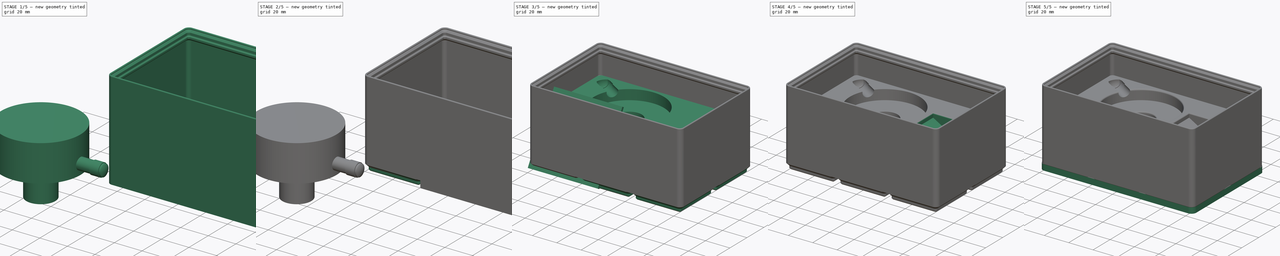
[diagram: build sequence overview — one tinted view per stage of 5, left to right]
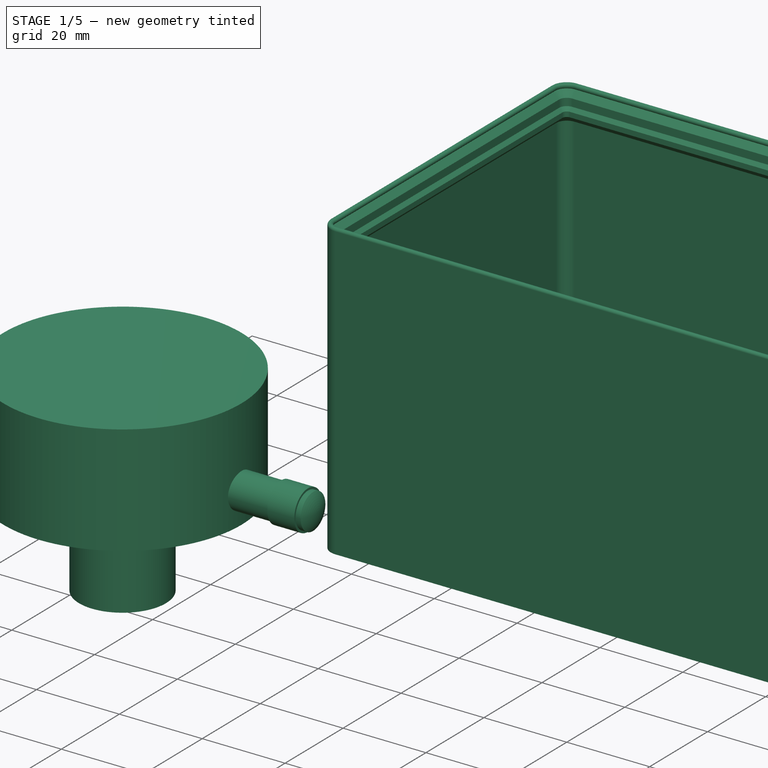
[diagram: stage 1 of 5 — iso view after this stage's code; geometry added in this stage tinted green]
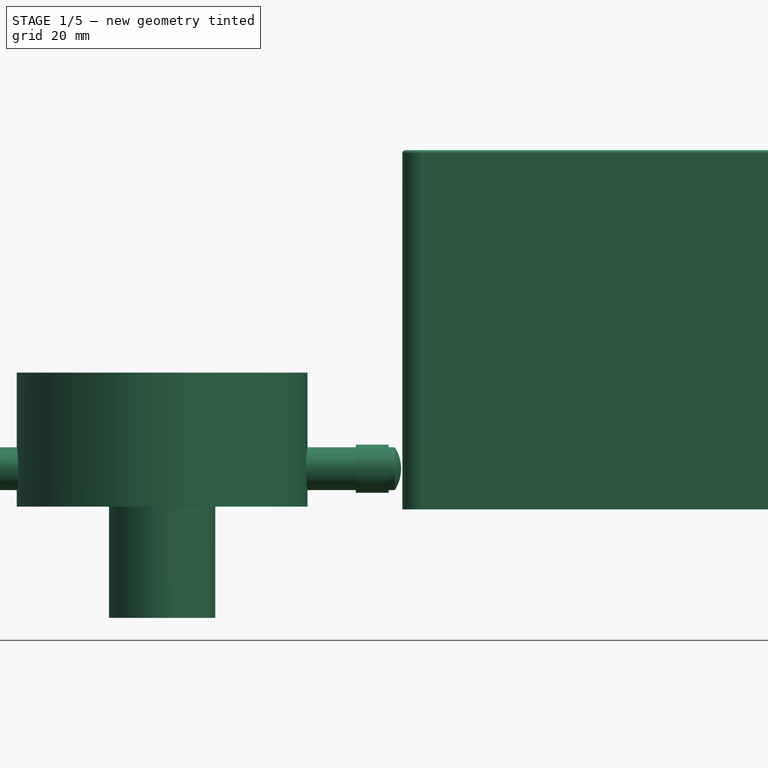
[diagram: stage 1 of 5 — front view after this stage's code; geometry added in this stage tinted green]
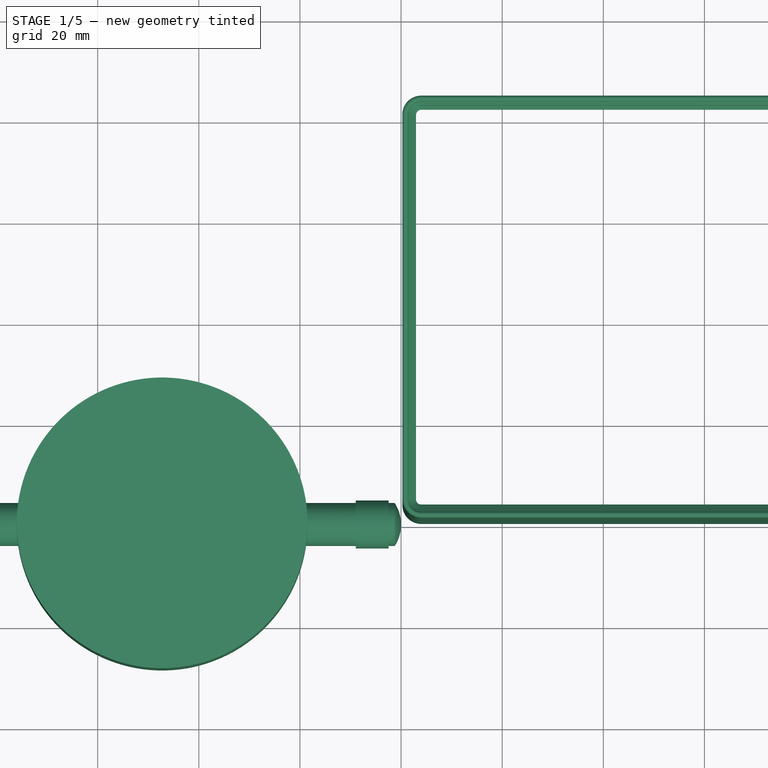
[diagram: stage 1 of 5 — top view after this stage's code; geometry added in this stage tinted green]
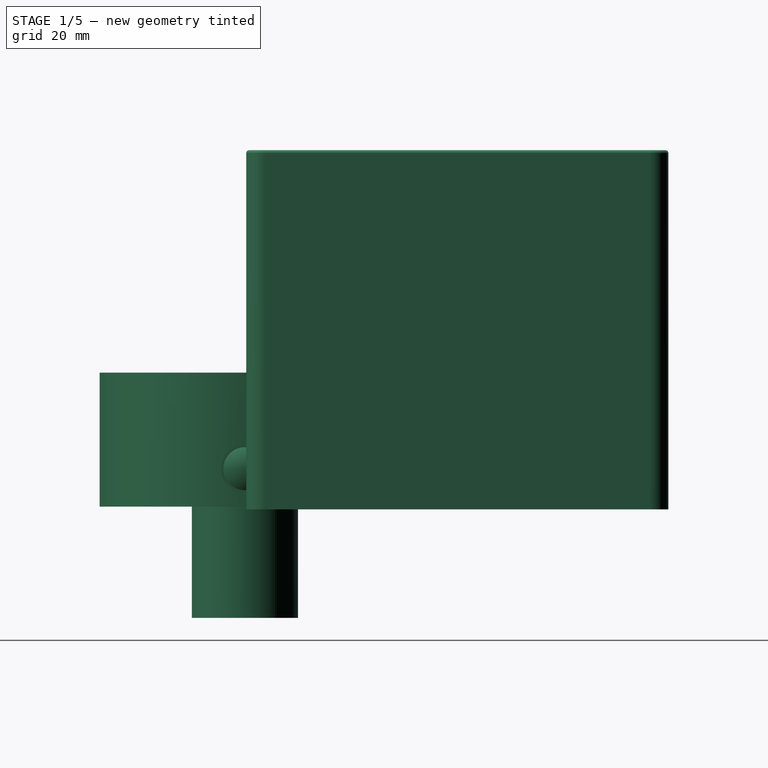
[diagram: stage 1 of 5 — right view after this stage's code; geometry added in this stage tinted green]
FCSTD DOCUMENT  (FreeCAD 0.20R29410 (Git))
Label: gridfinity_2x4_dial_gauge
License: Creative Commons Attribution
LicenseURL: http://creativecommons.org/licenses/by/4.0/
objects: Sketcher::SketchObject×20, PartDesign::Pad×7, PartDesign::Body×5, PartDesign::LinearPattern×4, PartDesign::Fillet×3, PartDesign::SubtractiveLoft×2, PartDesign::MultiTransform×2, PartDesign::Hole×2, Part::Cut×2, App::FeaturePython×1, PartDesign::AdditivePipe×1, PartDesign::Plane×1, PartDesign::Pocket×1, PartDesign::Revolution×1, PartDesign::FeatureBase×1
note: 69 computed .brp shape members not serialized (recipe doc carries the construction recipe); baked Part::Feature solids carry a one-line shape summary decoded from their .brp

FEATURE [PartDesign::Body] Body  label="Blank Frame"
  Group = -> [Sketch,Pad,Sketch001,Sketch002,Sketch003,Sketch004,SubtractiveLoft,MultiTransform,LinearPattern,LinearPattern001]
  Origin = -> Origin
  Tip = -> MultiTransform
FEATURE [Sketcher::SketchObject] Sketch005  label="Sketch_storage_wall_profile"
  AttachmentOffset = pos=(0,0,21) rot=(0,0,1;0rad)
  FullyConstrained = true
  MapMode = 5
  Placement = pos=(21,-4.7e-15,4.7e-15) rot=(0.57735,0.57735,0.57735;2.0944rad)
  Support = -> [YZ_Plane001]
  expr: .AttachmentOffset.Base.z = dd.ddCell_center
  expr: Constraints[16] = dd.ddFrame_height - dd.ddClearance
  expr: Constraints[17] = dd.ddBottom_chamfer
  expr: Constraints[26] = dd.ddWall_thickness
  expr: Constraints[27] = dd.ddWall_thickness
  expr: Constraints[28] = dd.ddStorage_height
  expr: Constraints[47] = dd.ddWall_thickness
  expr: Constraints[6] = dd.ddClearance
  expr: Constraints[7] = dd.ddFrame_width - dd.ddClearance
  sketch-geometry (17):
    g0: LineSegment StartX=0.25 StartY=0 StartZ=0 EndX=0.25 EndY=62.4 EndZ=0
    g1: LineSegment StartX=0.25 StartY=62.4 StartZ=0 EndX=0.85 EndY=62.4 EndZ=0
    g2: LineSegment StartX=0.85 StartY=62.4 StartZ=0 EndX=0.425736 EndY=61.9757 EndZ=0
    g3: LineSegment StartX=0.425736 StartY=61.9757 StartZ=0 EndX=2.15 EndY=60.2515 EndZ=0
    g4: LineSegment StartX=2.15 StartY=60.2515 StartZ=0 EndX=0 EndY=62.4015 EndZ=0
    g5: LineSegment StartX=2.15 StartY=60.2515 StartZ=0 EndX=2.15 EndY=58.4515 EndZ=0
    g6: LineSegment StartX=2.15 StartY=58.4515 StartZ=0 EndX=2.95 EndY=57.6515 EndZ=0
    g7: LineSegment StartX=2.95 StartY=57.6515 StartZ=0 EndX=2.95 EndY=56.4515 EndZ=0
    g8: LineSegment StartX=2.95 StartY=56.4515 StartZ=0 EndX=1.45 EndY=54.9515 EndZ=0
    g9: LineSegment StartX=1.45 StartY=54.9515 StartZ=0 EndX=1.45 EndY=-8.04853 EndZ=0
    g10: LineSegment StartX=1.45 StartY=-8.04853 StartZ=0 EndX=0.25 EndY=-8.04853 EndZ=0
    g11: LineSegment StartX=0.85 StartY=62.4 StartZ=0 EndX=0.85 EndY=63 EndZ=0
    g12: LineSegment StartX=1.45 StartY=54.9515 StartZ=0 EndX=1.45 EndY=63 EndZ=0
    g13: LineSegment StartX=0.85 StartY=63 StartZ=0 EndX=1.45 EndY=63 EndZ=0
    g14: LineSegment StartX=0.25 StartY=-8.04853 StartZ=0 EndX=0.25 EndY=0 EndZ=0
    g15: ArcOfCircle CenterX=0.85 CenterY=62.4 CenterZ=0 NormalX=0 NormalY=0 NormalZ=1 AngleXU=0 Radius=0.6 StartAngle=1.5708 EndAngle=3.14159
    g16: ArcOfCircle CenterX=0.85 CenterY=62.4 CenterZ=0 NormalX=0 NormalY=0 NormalZ=1 AngleXU=0 Radius=0.6 StartAngle=3.92699 EndAngle=7.85398
  constraints (48):
    c: Vertical(g0)
    c: Coincident(g1,g0)
    c: Horizontal(g1)
    c: Coincident(g2,g1)
    c: Coincident(g3,g2)
    c: Perpendicular(g3,g2)
    c: DistanceX(g-1,g0) = 0.25
    c: DistanceX(g-1,g3) = 2.15
    c: Coincident(g4,g3)
    c: PointOnObject(g4,g-2)
    c: PointOnObject(g2,g4)
    c: Angle(g-2,g4) = 0.785398
    c: Coincident(g5,g3)
    c: Vertical(g5)
    c: Coincident(g6,g5)
    c: Parallel(g4,g6)
    c: DistanceY(g6,g4) = 4.75
    c: DistanceX(g5,g6) = 0.8
    c: Coincident(g7,g6)
    c: Vertical(g7)
    c: Coincident(g8,g7)
    c: Coincident(g9,g8)
    c: Vertical(g9)
    c: Coincident(g10,g9)
    c: Horizontal(g10)
    c: Perpendicular(g8,g4)
    c: DistanceY(g7,g6) = 1.2
    c: DistanceX(g0,g9) = 1.2
    c: DistanceY(g-1,g11) = 63
    c: Coincident(g12,g8)
    c: Vertical(g12)
    c: Coincident(g13,g11)
    c: Coincident(g13,g12)
    c: Horizontal(g13)
    c: PointOnObject(g0,g-1)
    c: Coincident(g14,g10)
    c: Coincident(g14,g0)
    c: Vertical(g14)
    c: Equal(g12,g14)
    c: Vertical(g11)
    c: Coincident(g15,g1)
    c: Coincident(g15,g0)
    c: Coincident(g15,g11)
    c: Coincident(g16,g15)
    c: Coincident(g16,g15)
    c: Coincident(g16,g3)
    c: Coincident(g11,g15)
    c: Diameter(g15) = 1.2
FEATURE [Sketcher::SketchObject] Sketch006  label="Sketch_storage_wall_path"
  FullyConstrained = true
  MapMode = 5
  Support = -> [XY_Plane001]
  expr: Constraints[21] = dd.ddCorner_fillet
  expr: Constraints[22] = dd.ddTotal_width
  expr: Constraints[23] = dd.ddTotal_length
  sketch-geometry (10):
    g0: ArcOfCircle CenterX=4 CenterY=4 CenterZ=0 NormalX=0 NormalY=0 NormalZ=1 AngleXU=0 Radius=4 StartAngle=3.14159 EndAngle=4.71239
    g1: LineSegment StartX=0 StartY=4 StartZ=0 EndX=0 EndY=80 EndZ=0
    g2: ArcOfCircle CenterX=4 CenterY=80 CenterZ=0 NormalX=0 NormalY=0 NormalZ=1 AngleXU=0 Radius=4 StartAngle=1.5708 EndAngle=3.14159
    g3: LineSegment StartX=4 StartY=84 StartZ=0 EndX=122 EndY=84 EndZ=0
    g4: ArcOfCircle CenterX=122 CenterY=80 CenterZ=0 NormalX=0 NormalY=0 NormalZ=1 AngleXU=0 Radius=4 StartAngle=-1.8e-15 EndAngle=1.5708
    g5: LineSegment StartX=126 StartY=80 StartZ=0 EndX=126 EndY=4 EndZ=0
    g6: ArcOfCircle CenterX=122 CenterY=4 CenterZ=0 NormalX=0 NormalY=0 NormalZ=1 AngleXU=0 Radius=4 StartAngle=4.71239 EndAngle=6.28319
    g7: LineSegment StartX=122 StartY=0 StartZ=0 EndX=4 EndY=0 EndZ=0
    g8: GeomPoint X=0 Y=0 Z=0
    g9: GeomPoint X=126 Y=84 Z=0
  constraints (24):
    c: Tangent(g0,g1) = 1.5708
    c: Tangent(g1,g2) = 1.5708
    c: Tangent(g2,g3) = 1.5708
    c: Tangent(g3,g4) = 1.5708
    c: Tangent(g4,g5) = 1.5708
    c: Tangent(g5,g6) = 1.5708
    c: Tangent(g6,g7) = 1.5708
    c: Tangent(g7,g0) = 1.5708
    c: Horizontal(g3)
    c: Horizontal(g7)
    c: Vertical(g1)
    c: Vertical(g5)
    c: Equal(g0,g2)
    c: Equal(g2,g4)
    c: Equal(g4,g6)
    c: PointOnObject(g8,g1)
    c: PointOnObject(g8,g7)
    c: PointOnObject(g9,g3)
    c: PointOnObject(g9,g5)
    c: PointOnObject(g8,g-2)
    c: PointOnObject(g0,g-1)
    c: Radius(g0) = 4
    c: DistanceX(g0,g5) = 126
    c: DistanceY(g0,g2) = 84
FEATURE [PartDesign::AdditivePipe] AdditivePipe  label="AdditivePipe_storage_wall"
  AuxilleryCurvelinear = true
  AuxillerySpineTangent = false
  Binormal = (0,0,0)
  Mode = 0
  Placement = pos=(0,0,0) rot=(0.57735,0.57735,0.57735;2.0944rad)
  Profile = -> Sketch005
  Refine = true
  Spine = -> Sketch006
  SpineTangent = false
  Transformation = 0
  Transition = 0
FEATURE [PartDesign::Body] Body001  label="Blank Storage"
  Group = -> [Sketch005,Sketch006,AdditivePipe,DatumPlane,Sketch007,Pocket,Sketch008,Pad001,Sketch009,Sketch010,Sketch011,Sketch012,SubtractiveLoft001,Sketch013,Hole,Sketch014,Hole001,MultiTransform001,LinearPattern002,LinearPattern003,Pad002]
  Origin = -> Origin001
  Tip = -> Pad002
FEATURE [Sketcher::SketchObject] Sketch015
  FullyConstrained = false
  MapMode = 5
  Placement = pos=(0,0,0) rot=(1,0,0;1.5708rad)
  Support = -> [XZ_Plane003]
  sketch-geometry (14):
    g0: LineSegment StartX=-132.5 StartY=0 StartZ=0 EndX=0 EndY=0 EndZ=0
    g1: LineSegment StartX=-1.25317 StartY=4.25 StartZ=0 EndX=-2.46539 EndY=4.25 EndZ=0
    g2: LineSegment StartX=-2.46539 StartY=4.25 StartZ=0 EndX=-2.46539 EndY=4.75 EndZ=0
    g3: LineSegment StartX=-2.46539 StartY=4.75 StartZ=0 EndX=-8.96539 EndY=4.75 EndZ=0
    g4: LineSegment StartX=-8.96539 StartY=4.75 StartZ=0 EndX=-8.96539 EndY=4.25 EndZ=0
    g5: LineSegment StartX=-8.96539 StartY=4.25 StartZ=0 EndX=-92.4654 EndY=4.25 EndZ=0
    g6: LineSegment StartX=-92.4654 StartY=4.25 StartZ=0 EndX=-96.9654 EndY=3.75 EndZ=0
    g7: LineSegment StartX=-96.9654 StartY=3.75 StartZ=0 EndX=-96.9654 EndY=2.5 EndZ=0
    g8: LineSegment StartX=-96.9654 StartY=2.5 StartZ=0 EndX=-123.5 EndY=2.5 EndZ=0
    g9: LineSegment StartX=-123.5 StartY=2.5 StartZ=0 EndX=-123.5 EndY=3 EndZ=0
    g10: LineSegment StartX=-123.5 StartY=3 StartZ=0 EndX=-127.5 EndY=3 EndZ=0
    g11: LineSegment StartX=-127.5 StartY=3 StartZ=0 EndX=-132.5 EndY=2 EndZ=0
    g12: LineSegment StartX=-132.5 StartY=2 StartZ=0 EndX=-132.5 EndY=0 EndZ=0
    g13: ArcOfCircle CenterX=-7.83329 CenterY=0 CenterZ=0 NormalX=0 NormalY=0 NormalZ=1 AngleXU=0 Radius=7.83329 StartAngle=0 EndAngle=0.573477
  constraints (40):
    c: PointOnObject(g0,g-1)
    c: Horizontal(g1)
    c: Coincident(g1,g2)
    c: Vertical(g2)
    c: Coincident(g2,g3)
    c: Horizontal(g3)
    c: Coincident(g3,g4)
    c: Vertical(g4)
    c: Coincident(g4,g5)
    c: Horizontal(g5)
    c: Coincident(g5,g6)
    c: Coincident(g6,g7)
    c: Vertical(g7)
    c: Coincident(g7,g8)
    c: Horizontal(g8)
    c: Coincident(g8,g9)
    c: Vertical(g9)
    c: Coincident(g9,g10)
    c: Horizontal(g10)
    c: Coincident(g10,g11)
    c: Coincident(g11,g12)
    c: Coincident(g12,g0)
    c: Vertical(g12)
    c: DistanceX(g3,g3) = 6.5
    c: DistanceY(g2,g2) = 0.5
    c: Horizontal(g4,g1)
    c: DistanceY(g0,g1) = 4.25
    c: DistanceX(g5,g5) = 83.5
    c: DistanceX(g6,g5) = 4.5
    c: DistanceX(g10,g9) = 4
    c: DistanceX(g11,g10) = 5
    c: DistanceY(g0,g11) = 2
    c: DistanceY(g7,g6) = 1.25
    c: DistanceY(g0,g8) = 2.5
    c: DistanceY(g8,g9) = 0.5
    c: Coincident(g0,g-1)
    c: DistanceX(g0,g0) = 132.5
    c: Coincident(g13,g0)
    c: Coincident(g13,g1)
    c: PointOnObject(g13,g0)
FEATURE [PartDesign::Revolution] Revolution
  Angle = 360
  Axis = (1,0,0)
  Base = (0,0,0)
  Placement = pos=(0,0,0) rot=(1,0,0;1.5708rad)
  Profile = -> Sketch015
  ReferenceAxis = -> Sketch015 [H_Axis]
FEATURE [Sketcher::SketchObject] Sketch016  label="Sketch001"
  AttachmentOffset = pos=(0,0,-7.5) rot=(0,0,1;0rad)
  FullyConstrained = false
  MapMode = 5
  Placement = pos=(0,0,-7.5) rot=(0,0,1;0rad)
  Support = -> [XY_Plane003]
  sketch-geometry (2):
    g0: Circle CenterX=-47.25 CenterY=0 CenterZ=0 NormalX=0 NormalY=0 NormalZ=1 AngleXU=0 Radius=28.75
    g1: LineSegment StartX=-18.5 StartY=65.1159 StartZ=0 EndX=-18.5 EndY=-72.6335 EndZ=0
  constraints (5):
    c: PointOnObject(g0,g-1)
    c: Diameter(g0) = 57.5
    c: Vertical(g1)
    c: DistanceX(g1,g-1) = 18.5
    c: Tangent(g0,g1)
FEATURE [PartDesign::Pad] Pad003
  BaseFeature = -> Revolution
  Direction = (0,0,1)
  Length = 26.5
  Length2 = 10
  Placement = pos=(0,0,0) rot=(1,0,0;1.5708rad)
  Profile = -> Sketch016
  ReferenceAxis = -> Sketch016 [N_Axis]
  Type = 0
FEATURE [Sketcher::SketchObject] Sketch017
  AttachmentOffset = pos=(0,0,-7.5) rot=(0,0,1;0rad)
  FullyConstrained = false
  MapMode = 5
  Placement = pos=(0,0,-7.5) rot=(0,0,1;0rad)
  Support = -> [XY_Plane003]
  expr: Constraints[5] = 57.5 / 2
  sketch-geometry (3):
    g0: Circle CenterX=-47.25 CenterY=0 CenterZ=0 NormalX=0 NormalY=0 NormalZ=1 AngleXU=0 Radius=10.5
    g1: LineSegment StartX=-18.5 StartY=67.183 StartZ=0 EndX=-18.5 EndY=-74.252 EndZ=0
    g2: LineSegment StartX=-47.25 StartY=64.4188 StartZ=0 EndX=-47.25 EndY=-65.9594 EndZ=0
  constraints (7):
    c: Diameter(g0) = 21
    c: PointOnObject(g0,g-1)
    c: Vertical(g1)
    c: DistanceX(g1,g-1) = 18.5
    c: Vertical(g2)
    c: DistanceX(g2,g1) = 28.75
    c: PointOnObject(g0,g2)
FEATURE [PartDesign::Pad] Pad004
  BaseFeature = -> Pad003
  Direction = (0,0,1)
  Length = 22
  Length2 = 10
  Placement = pos=(0,0,0) rot=(1,0,0;1.5708rad)
  Profile = -> Sketch017
  ReferenceAxis = -> Sketch017 [N_Axis]
  Reversed = true
  Type = 0
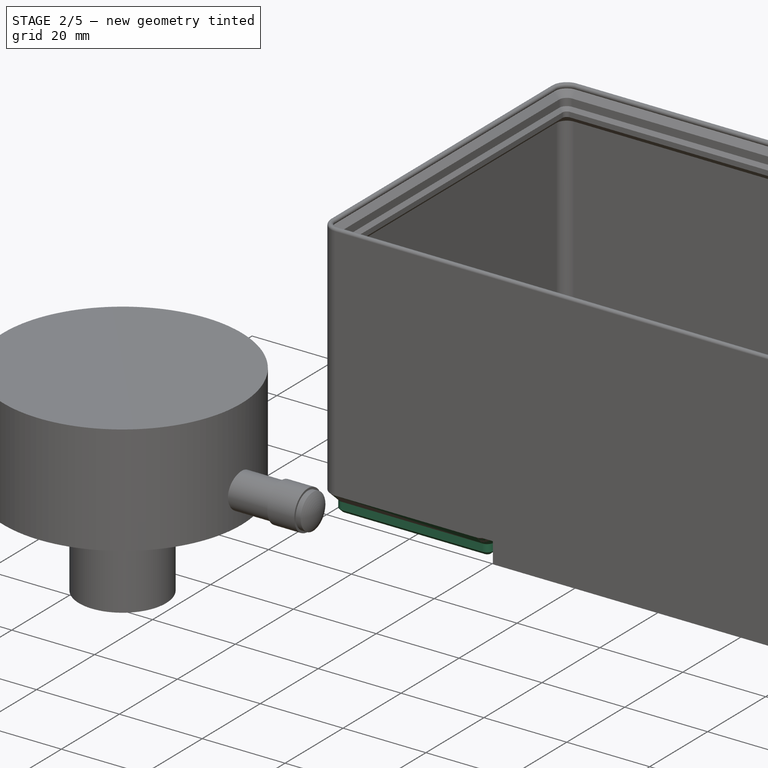
[diagram: stage 2 of 5 — iso view after this stage's code; geometry added in this stage tinted green]
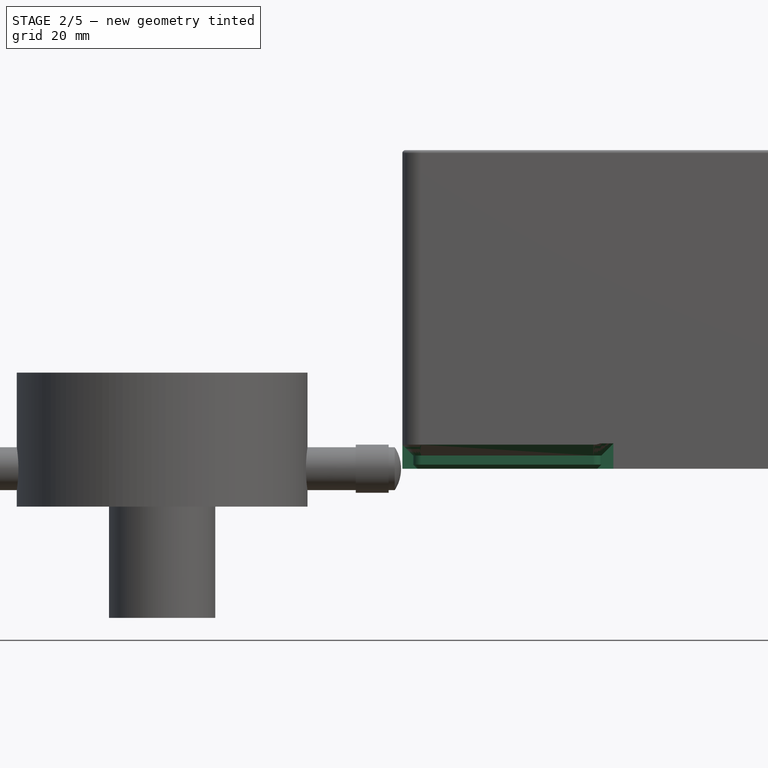
[diagram: stage 2 of 5 — front view after this stage's code; geometry added in this stage tinted green]
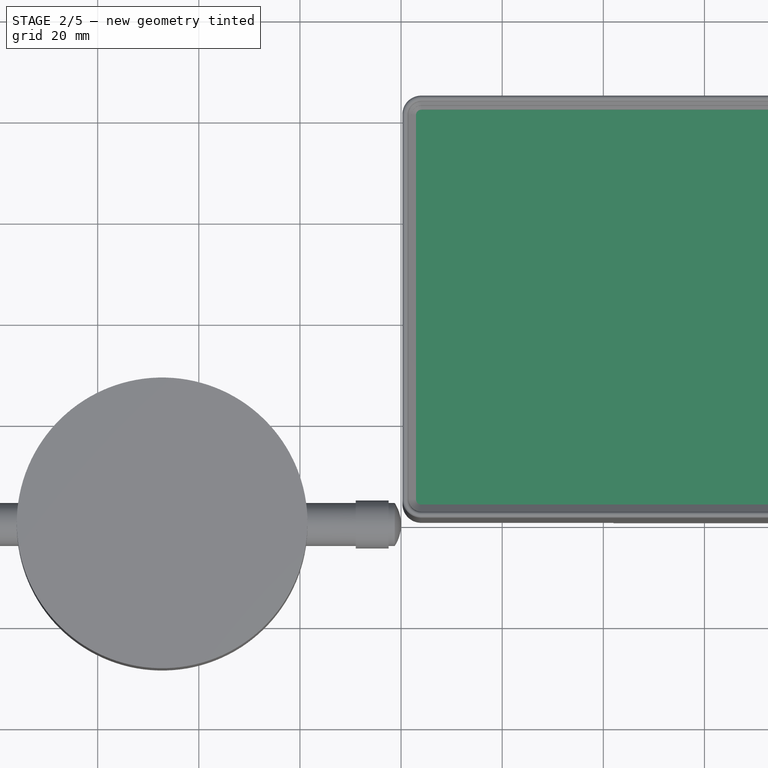
[diagram: stage 2 of 5 — top view after this stage's code; geometry added in this stage tinted green]
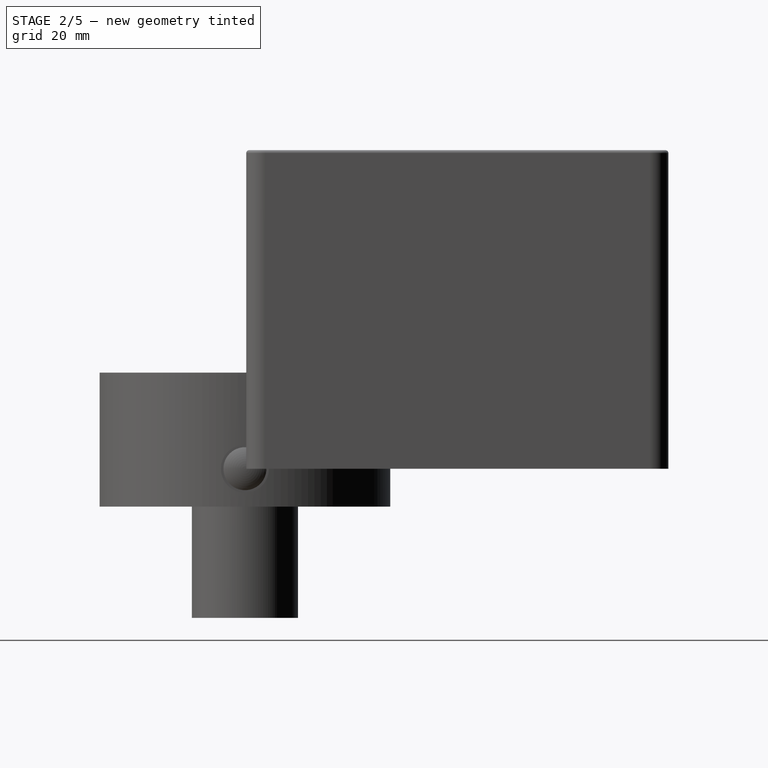
[diagram: stage 2 of 5 — right view after this stage's code; geometry added in this stage tinted green]
FEATURE [PartDesign::Plane] DatumPlane  label="DatumPlane_frame_height"
  AttachmentOffset = pos=(0,0,5) rot=(0,0,1;0rad)
  Length = 176.358
  MapMode = 5
  Placement = pos=(0,0,5) rot=(0,0,1;0rad)
  ResizeMode = 0
  Support = -> [XY_Plane001]
  Width = 134.358
  expr: .AttachmentOffset.Base.z = dd.ddFrame_height
FEATURE [Sketcher::SketchObject] Sketch007  label="Sketch_trim_wall_bottom"
  FullyConstrained = true
  MapMode = 5
  Placement = pos=(0,0,5) rot=(0,0,1;0rad)
  Support = -> [DatumPlane]
  expr: Constraints[7] = dd.ddTotal_width + 10mm
  expr: Constraints[8] = dd.ddTotal_length + 10mm
  sketch-geometry (4):
    g0: LineSegment StartX=-5 StartY=-5 StartZ=0 EndX=131 EndY=-5 EndZ=0
    g1: LineSegment StartX=131 StartY=-5 StartZ=0 EndX=131 EndY=89 EndZ=0
    g2: LineSegment StartX=131 StartY=89 StartZ=0 EndX=-5 EndY=89 EndZ=0
    g3: LineSegment StartX=-5 StartY=89 StartZ=0 EndX=-5 EndY=-5 EndZ=0
  constraints (12):
    c: Coincident(g0,g1)
    c: Coincident(g1,g2)
    c: Coincident(g2,g3)
    c: Horizontal(g0)
    c: Horizontal(g2)
    c: Vertical(g1)
    c: Vertical(g3)
    c: DistanceX(g0,g0) = 136
    c: DistanceY(g0,g2) = 94
    c: Coincident(g3,g0)
    c: DistanceX(g0,g-1) = 5
    c: DistanceY(g0,g-1) = 5
FEATURE [PartDesign::Pocket] Pocket  label="Pocket_trim_wall_bottom"
  BaseFeature = -> AdditivePipe
  Direction = (0,0,-1)
  Length = 5
  Length2 = 5
  Placement = pos=(0,0,0) rot=(0.57735,0.57735,0.57735;2.0944rad)
  Profile = -> Sketch007
  ReferenceAxis = -> Sketch007 [N_Axis]
  Refine = true
  Type = 1
FEATURE [Sketcher::SketchObject] Sketch008  label="Sketch_storage_stock"
  FullyConstrained = true
  MapMode = 5
  Support = -> [XY_Plane001]
  expr: Constraints[19] = dd.ddClearance
  expr: Constraints[20] = dd.ddClearance
  expr: Constraints[21] = dd.ddCorner_fillet
  expr: Constraints[22] = dd.ddTotal_width - 2 * dd.ddCorner_fillet
  expr: Constraints[23] = dd.ddTotal_length - 2 * dd.ddCorner_fillet
  sketch-geometry (10):
    g0: ArcOfCircle CenterX=4 CenterY=4 CenterZ=0 NormalX=0 NormalY=0 NormalZ=1 AngleXU=0 Radius=3.75 StartAngle=3.14159 EndAngle=4.71239
    g1: LineSegment StartX=0.25 StartY=4 StartZ=0 EndX=0.25 EndY=80 EndZ=0
    g2: ArcOfCircle CenterX=4 CenterY=80 CenterZ=0 NormalX=0 NormalY=0 NormalZ=1 AngleXU=0 Radius=3.75 StartAngle=1.5708 EndAngle=3.14159
    g3: LineSegment StartX=4 StartY=83.75 StartZ=0 EndX=122 EndY=83.75 EndZ=0
    g4: ArcOfCircle CenterX=122 CenterY=80 CenterZ=0 NormalX=0 NormalY=0 NormalZ=1 AngleXU=0 Radius=3.75 StartAngle=4e-16 EndAngle=1.5708
    g5: LineSegment StartX=125.75 StartY=80 StartZ=0 EndX=125.75 EndY=4 EndZ=0
    g6: ArcOfCircle CenterX=122 CenterY=4 CenterZ=0 NormalX=0 NormalY=0 NormalZ=1 AngleXU=0 Radius=3.75 StartAngle=4.71239 EndAngle=6.28319
    g7: LineSegment StartX=122 StartY=0.25 StartZ=0 EndX=4 EndY=0.25 EndZ=0
    g8: GeomPoint X=0.25 Y=0.25 Z=0
    g9: GeomPoint X=125.75 Y=83.75 Z=0
  constraints (24):
    c: Tangent(g0,g1) = 1.5708
    c: Tangent(g1,g2) = 1.5708
    c: Tangent(g2,g3) = 1.5708
    c: Tangent(g3,g4) = 1.5708
    c: Tangent(g4,g5) = 1.5708
    c: Tangent(g5,g6) = 1.5708
    c: Tangent(g6,g7) = 1.5708
    c: Tangent(g7,g0) = 1.5708
    c: Horizontal(g3)
    c: Horizontal(g7)
    c: Vertical(g1)
    c: Vertical(g5)
    c: Equal(g0,g2)
    c: Equal(g2,g4)
    c: Equal(g4,g6)
    c: PointOnObject(g8,g1)
    c: PointOnObject(g8,g7)
    c: PointOnObject(g9,g3)
    c: PointOnObject(g9,g5)
    c: DistanceX(g-1,g0) = 0.25
    c: DistanceY(g-1,g0) = 0.25
    c: DistanceX(g-1,g0) = 4
    c: DistanceX(g2,g4) = 118
    c: DistanceY(g6,g4) = 76
FEATURE [PartDesign::Pad] Pad001  label="Pad_storage_stock"
  BaseFeature = -> Pocket
  Direction = (0,0,1)
  Length = 6.2
  Length2 = 10
  Placement = pos=(0,0,0) rot=(0.57735,0.57735,0.57735;2.0944rad)
  Profile = -> Sketch008
  ReferenceAxis = -> Sketch008 [N_Axis]
  Refine = true
  Type = 0
  expr: Length = dd.ddFrame_height + dd.ddWall_thickness
FEATURE [Sketcher::SketchObject] Sketch009  label="Sketch_storage_cell_cutout_top"
  AttachmentOffset = pos=(0,0,5) rot=(0,0,1;0rad)
  FullyConstrained = true
  MapMode = 5
  Placement = pos=(0,0,5) rot=(0,0,1;0rad)
  Support = -> [XY_Plane001]
  expr: .AttachmentOffset.Base.z = dd.ddFrame_height
  expr: Constraints[19] = dd.ddCorner_fillet - 1e-06mm
  expr: Constraints[20] = dd.ddCorner_fillet
  expr: Constraints[21] = dd.ddCorner_fillet
  expr: Constraints[31] = dd.ddCorner_fillet
  expr: Constraints[32] = dd.ddCorner_fillet
  expr: Constraints[33] = dd.ddGrid_size
  expr: Constraints[34] = dd.ddGrid_size
  sketch-geometry (14):
    g0: ArcOfCircle CenterX=4 CenterY=4 CenterZ=0 NormalX=0 NormalY=0 NormalZ=1 AngleXU=0 Radius=4 StartAngle=3.14159 EndAngle=4.71239
    g1: LineSegment StartX=1e-06 StartY=4 StartZ=0 EndX=1e-06 EndY=38 EndZ=0
    g2: ArcOfCircle CenterX=4 CenterY=38 CenterZ=0 NormalX=0 NormalY=0 NormalZ=1 AngleXU=0 Radius=4 StartAngle=1.5708 EndAngle=3.14159
    g3: LineSegment StartX=4 StartY=42 StartZ=0 EndX=38 EndY=42 EndZ=0
    g4: ArcOfCircle CenterX=38 CenterY=38 CenterZ=0 NormalX=0 NormalY=0 NormalZ=1 AngleXU=0 Radius=4 StartAngle=-9e-16 EndAngle=1.5708
    g5: LineSegment StartX=42 StartY=38 StartZ=0 EndX=42 EndY=4 EndZ=0
    g6: ArcOfCircle CenterX=38 CenterY=4 CenterZ=0 NormalX=0 NormalY=0 NormalZ=1 AngleXU=0 Radius=4 StartAngle=4.71239 EndAngle=6.28319
    g7: LineSegment StartX=38 StartY=1e-06 StartZ=0 EndX=4 EndY=1e-06 EndZ=0
    g8: GeomPoint X=1e-06 Y=1e-06 Z=0
    g9: GeomPoint X=42 Y=42 Z=0
    g10: LineSegment StartX=0 StartY=0 StartZ=0 EndX=42 EndY=0 EndZ=0
    g11: LineSegment StartX=42 StartY=0 StartZ=0 EndX=42 EndY=42 EndZ=0
    g12: LineSegment StartX=42 StartY=42 StartZ=0 EndX=0 EndY=42 EndZ=0
    g13: LineSegment StartX=0 StartY=42 StartZ=0 EndX=0 EndY=0 EndZ=0
  constraints (35):
    c: Tangent(g0,g1) = 1.5708
    c: Tangent(g1,g2) = 1.5708
    c: Tangent(g2,g3) = 1.5708
    c: Tangent(g3,g4) = 1.5708
    c: Tangent(g4,g5) = 1.5708
    c: Tangent(g5,g6) = 1.5708
    c: Tangent(g6,g7) = 1.5708
    c: Tangent(g7,g0) = 1.5708
    c: Horizontal(g3)
    c: Horizontal(g7)
    c: Vertical(g1)
    c: Vertical(g5)
    c: Equal(g0,g2)
    c: Equal(g2,g4)
    c: Equal(g4,g6)
    c: PointOnObject(g8,g1)
    c: PointOnObject(g8,g7)
    c: PointOnObject(g9,g3)
    c: PointOnObject(g9,g5)
    c: Radius(g0) = 4
    c: DistanceX(g-1,g0) = 4
    c: DistanceY(g-1,g0) = 4
    c: Coincident(g10,g11)
    c: Coincident(g11,g12)
    c: Coincident(g12,g13)
    c: Coincident(g13,g10)
    c: Horizontal(g10)
    c: Horizontal(g12)
    c: Vertical(g11)
    c: Vertical(g13)
    c: Coincident(g10,g-1)
    c: DistanceX(g6,g10) = 4
    c: DistanceY(g2,g12) = 4
    c: DistanceX(g10,g10) = 42
    c: DistanceY(g10,g12) = 42
FEATURE [Sketcher::SketchObject] Sketch010  label="Sketch_storage_cell_cutout_top_chamfer"
  AttachmentOffset = pos=(0,0,2.6) rot=(0,0,1;0rad)
  FullyConstrained = true
  MapMode = 5
  Placement = pos=(0,0,2.6) rot=(0,0,1;0rad)
  Support = -> [XY_Plane001]
  expr: .AttachmentOffset.Base.z = dd.ddFrame_height - dd.ddFrame_width
  expr: Constraints[19] = Sketch009.Constraints[19] - dd.ddFrame_width
  expr: Constraints[20] = Sketch009.Constraints[20]
  expr: Constraints[21] = Sketch009.Constraints[21]
  expr: Constraints[31] = Sketch009.Constraints[31]
  expr: Constraints[32] = Sketch009.Constraints[32]
  expr: Constraints[33] = Sketch009.Constraints[33]
  expr: Constraints[34] = Sketch009.Constraints[34]
  sketch-geometry (14):
    g0: ArcOfCircle CenterX=4 CenterY=4 CenterZ=0 NormalX=0 NormalY=0 NormalZ=1 AngleXU=0 Radius=1.6 StartAngle=3.14159 EndAngle=4.71239
    g1: LineSegment StartX=2.4 StartY=4 StartZ=0 EndX=2.4 EndY=38 EndZ=0
    g2: ArcOfCircle CenterX=4 CenterY=38 CenterZ=0 NormalX=0 NormalY=0 NormalZ=1 AngleXU=0 Radius=1.6 StartAngle=1.5708 EndAngle=3.14159
    g3: LineSegment StartX=4 StartY=39.6 StartZ=0 EndX=38 EndY=39.6 EndZ=0
    g4: ArcOfCircle CenterX=38 CenterY=38 CenterZ=0 NormalX=0 NormalY=0 NormalZ=1 AngleXU=0 Radius=1.6 StartAngle=3.81e-14 EndAngle=1.5708
    g5: LineSegment StartX=39.6 StartY=38 StartZ=0 EndX=39.6 EndY=4 EndZ=0
    g6: ArcOfCircle CenterX=38 CenterY=4 CenterZ=0 NormalX=0 NormalY=0 NormalZ=1 AngleXU=0 Radius=1.6 StartAngle=4.71239 EndAngle=6.28319
    g7: LineSegment StartX=38 StartY=2.4 StartZ=0 EndX=4 EndY=2.4 EndZ=0
    g8: GeomPoint X=2.4 Y=2.4 Z=0
    g9: GeomPoint X=39.6 Y=39.6 Z=0
    g10: LineSegment StartX=0 StartY=0 StartZ=0 EndX=42 EndY=0 EndZ=0
    g11: LineSegment StartX=42 StartY=0 StartZ=0 EndX=42 EndY=42 EndZ=0
    g12: LineSegment StartX=42 StartY=42 StartZ=0 EndX=0 EndY=42 EndZ=0
    g13: LineSegment StartX=0 StartY=42 StartZ=0 EndX=0 EndY=0 EndZ=0
  constraints (35):
    c: Tangent(g0,g1) = 1.5708
    c: Tangent(g1,g2) = 1.5708
    c: Tangent(g2,g3) = 1.5708
    c: Tangent(g3,g4) = 1.5708
    c: Tangent(g4,g5) = 1.5708
    c: Tangent(g5,g6) = 1.5708
    c: Tangent(g6,g7) = 1.5708
    c: Tangent(g7,g0) = 1.5708
    c: Horizontal(g3)
    c: Horizontal(g7)
    c: Vertical(g1)
    c: Vertical(g5)
    c: Equal(g0,g2)
    c: Equal(g2,g4)
    c: Equal(g4,g6)
    c: PointOnObject(g8,g1)
    c: PointOnObject(g8,g7)
    c: PointOnObject(g9,g3)
    c: PointOnObject(g9,g5)
    c: Radius(g0) = 1.6
    c: DistanceX(g-1,g0) = 4
    c: DistanceY(g-1,g0) = 4
    c: Coincident(g10,g11)
    c: Coincident(g11,g12)
    c: Coincident(g12,g13)
    c: Coincident(g13,g10)
    c: Horizontal(g10)
    c: Horizontal(g12)
    c: Vertical(g11)
    c: Vertical(g13)
    c: Coincident(g10,g-1)
    c: DistanceX(g6,g10) = 4
    c: DistanceY(g2,g12) = 4
    c: DistanceX(g10,g10) = 42
    c: DistanceY(g10,g12) = 42
FEATURE [Sketcher::SketchObject] Sketch011  label="Sketch_storage_cell_cutout_bottom_chamfer"
  AttachmentOffset = pos=(0,0,0.8) rot=(0,0,1;0rad)
  FullyConstrained = true
  MapMode = 5
  Placement = pos=(0,0,0.8) rot=(0,0,1;0rad)
  Support = -> [XY_Plane001]
  expr: .AttachmentOffset.Base.z = dd.ddBottom_chamfer
  expr: Constraints[19] = Sketch010.Constraints[19]
  expr: Constraints[20] = Sketch010.Constraints[20]
  expr: Constraints[21] = Sketch010.Constraints[21]
  expr: Constraints[31] = Sketch010.Constraints[31]
  expr: Constraints[32] = Sketch010.Constraints[32]
  expr: Constraints[33] = Sketch010.Constraints[33]
  expr: Constraints[34] = Sketch010.Constraints[34]
  sketch-geometry (14):
    g0: ArcOfCircle CenterX=4 CenterY=4 CenterZ=0 NormalX=0 NormalY=0 NormalZ=1 AngleXU=0 Radius=1.6 StartAngle=3.14159 EndAngle=4.71239
    g1: LineSegment StartX=2.4 StartY=4 StartZ=0 EndX=2.4 EndY=38 EndZ=0
    g2: ArcOfCircle CenterX=4 CenterY=38 CenterZ=0 NormalX=0 NormalY=0 NormalZ=1 AngleXU=0 Radius=1.6 StartAngle=1.5708 EndAngle=3.14159
    g3: LineSegment StartX=4 StartY=39.6 StartZ=0 EndX=38 EndY=39.6 EndZ=0
    g4: ArcOfCircle CenterX=38 CenterY=38 CenterZ=0 NormalX=0 NormalY=0 NormalZ=1 AngleXU=0 Radius=1.6 StartAngle=3.81e-14 EndAngle=1.5708
    g5: LineSegment StartX=39.6 StartY=38 StartZ=0 EndX=39.6 EndY=4 EndZ=0
    g6: ArcOfCircle CenterX=38 CenterY=4 CenterZ=0 NormalX=0 NormalY=0 NormalZ=1 AngleXU=0 Radius=1.6 StartAngle=4.71239 EndAngle=6.28319
    g7: LineSegment StartX=38 StartY=2.4 StartZ=0 EndX=4 EndY=2.4 EndZ=0
    g8: GeomPoint X=2.4 Y=2.4 Z=0
    g9: GeomPoint X=39.6 Y=39.6 Z=0
    g10: LineSegment StartX=0 StartY=0 StartZ=0 EndX=42 EndY=0 EndZ=0
    g11: LineSegment StartX=42 StartY=0 StartZ=0 EndX=42 EndY=42 EndZ=0
    g12: LineSegment StartX=42 StartY=42 StartZ=0 EndX=0 EndY=42 EndZ=0
    g13: LineSegment StartX=0 StartY=42 StartZ=0 EndX=0 EndY=0 EndZ=0
  constraints (35):
    c: Tangent(g0,g1) = 1.5708
    c: Tangent(g1,g2) = 1.5708
    c: Tangent(g2,g3) = 1.5708
    c: Tangent(g3,g4) = 1.5708
    c: Tangent(g4,g5) = 1.5708
    c: Tangent(g5,g6) = 1.5708
    c: Tangent(g6,g7) = 1.5708
    c: Tangent(g7,g0) = 1.5708
    c: Horizontal(g3)
    c: Horizontal(g7)
    c: Vertical(g1)
    c: Vertical(g5)
    c: Equal(g0,g2)
    c: Equal(g2,g4)
    c: Equal(g4,g6)
    c: PointOnObject(g8,g1)
    c: PointOnObject(g8,g7)
    c: PointOnObject(g9,g3)
    c: PointOnObject(g9,g5)
    c: Radius(g0) = 1.6
    c: DistanceX(g-1,g0) = 4
    c: DistanceY(g-1,g0) = 4
    c: Coincident(g10,g11)
    c: Coincident(g11,g12)
    c: Coincident(g12,g13)
    c: Coincident(g13,g10)
    c: Horizontal(g10)
    c: Horizontal(g12)
    c: Vertical(g11)
    c: Vertical(g13)
    c: Coincident(g10,g-1)
    c: DistanceX(g6,g10) = 4
    c: DistanceY(g2,g12) = 4
    c: DistanceX(g10,g10) = 42
    c: DistanceY(g10,g12) = 42
FEATURE [Sketcher::SketchObject] Sketch012  label="Sketch_storage_cell_cutout_bottom"
  FullyConstrained = true
  MapMode = 5
  Support = -> [XY_Plane001]
  expr: Constraints[19] = Sketch011.Constraints[19] - dd.ddBottom_chamfer
  expr: Constraints[20] = Sketch011.Constraints[20]
  expr: Constraints[21] = Sketch011.Constraints[21]
  expr: Constraints[31] = Sketch011.Constraints[31]
  expr: Constraints[32] = Sketch011.Constraints[32]
  expr: Constraints[33] = Sketch011.Constraints[33]
  expr: Constraints[34] = Sketch011.Constraints[34]
  sketch-geometry (14):
    g0: ArcOfCircle CenterX=4 CenterY=4 CenterZ=0 NormalX=0 NormalY=0 NormalZ=1 AngleXU=0 Radius=0.799999 StartAngle=3.14159 EndAngle=4.71239
    g1: LineSegment StartX=3.2 StartY=4 StartZ=0 EndX=3.2 EndY=38 EndZ=0
    g2: ArcOfCircle CenterX=4 CenterY=38 CenterZ=0 NormalX=0 NormalY=0 NormalZ=1 AngleXU=0 Radius=0.799999 StartAngle=1.5708 EndAngle=3.14159
    g3: LineSegment StartX=4 StartY=38.8 StartZ=0 EndX=38 EndY=38.8 EndZ=0
    g4: ArcOfCircle CenterX=38 CenterY=38 CenterZ=0 NormalX=0 NormalY=0 NormalZ=1 AngleXU=0 Radius=0.799999 StartAngle=-2.7e-15 EndAngle=1.5708
    g5: LineSegment StartX=38.8 StartY=38 StartZ=0 EndX=38.8 EndY=4 EndZ=0
    g6: ArcOfCircle CenterX=38 CenterY=4 CenterZ=0 NormalX=0 NormalY=0 NormalZ=1 AngleXU=0 Radius=0.799999 StartAngle=4.71239 EndAngle=6.28319
    g7: LineSegment StartX=38 StartY=3.2 StartZ=0 EndX=4 EndY=3.2 EndZ=0
    g8: GeomPoint X=3.2 Y=3.2 Z=0
    g9: GeomPoint X=38.8 Y=38.8 Z=0
    g10: LineSegment StartX=0 StartY=0 StartZ=0 EndX=42 EndY=0 EndZ=0
    g11: LineSegment StartX=42 StartY=0 StartZ=0 EndX=42 EndY=42 EndZ=0
    g12: LineSegment StartX=42 StartY=42 StartZ=0 EndX=0 EndY=42 EndZ=0
    g13: LineSegment StartX=0 StartY=42 StartZ=0 EndX=0 EndY=0 EndZ=0
  constraints (35):
    c: Tangent(g0,g1) = 1.5708
    c: Tangent(g1,g2) = 1.5708
    c: Tangent(g2,g3) = 1.5708
    c: Tangent(g3,g4) = 1.5708
    c: Tangent(g4,g5) = 1.5708
    c: Tangent(g5,g6) = 1.5708
    c: Tangent(g6,g7) = 1.5708
    c: Tangent(g7,g0) = 1.5708
    c: Horizontal(g3)
    c: Horizontal(g7)
    c: Vertical(g1)
    c: Vertical(g5)
    c: Equal(g0,g2)
    c: Equal(g2,g4)
    c: Equal(g4,g6)
    c: PointOnObject(g8,g1)
    c: PointOnObject(g8,g7)
    c: PointOnObject(g9,g3)
    c: PointOnObject(g9,g5)
    c: Radius(g0) = 0.799999
    c: DistanceX(g-1,g0) = 4
    c: DistanceY(g-1,g0) = 4
    c: Coincident(g10,g11)
    c: Coincident(g11,g12)
    c: Coincident(g12,g13)
    c: Coincident(g13,g10)
    c: Horizontal(g10)
    c: Horizontal(g12)
    c: Vertical(g11)
    c: Vertical(g13)
    c: Coincident(g10,g-1)
    c: DistanceX(g6,g10) = 4
    c: DistanceY(g2,g12) = 4
    c: DistanceX(g10,g10) = 42
    c: DistanceY(g10,g12) = 42
FEATURE [PartDesign::SubtractiveLoft] SubtractiveLoft001  label="SubtractiveLoft_storage_cell_cutout"
  BaseFeature = -> Pad001
  Closed = false
  Placement = pos=(0,0,0) rot=(0.57735,0.57735,0.57735;2.0944rad)
  Profile = -> Sketch009
  Refine = true
  Ruled = true
  Sections = -> [Sketch010,Sketch011,Sketch012]
FEATURE [Sketcher::SketchObject] Sketch013  label="Sketch_base_magnets"
  FullyConstrained = true
  MapMode = 5
  Support = -> [XY_Plane001]
  expr: Constraints[21] = dd.ddMagnet_inset
  expr: Constraints[22] = dd.ddGrid_size
  expr: Constraints[23] = dd.ddGrid_size
  expr: Constraints[31] = dd.ddMagnet_diameter
  sketch-geometry (14):
    g0: ArcOfCircle CenterX=8 CenterY=8 CenterZ=0 NormalX=0 NormalY=0 NormalZ=1 AngleXU=0 Radius=8 StartAngle=3.14159 EndAngle=4.71239
    g1: LineSegment StartX=-1.8e-15 StartY=8 StartZ=0 EndX=-1.8e-15 EndY=34 EndZ=0
    g2: ArcOfCircle CenterX=8 CenterY=34 CenterZ=0 NormalX=0 NormalY=0 NormalZ=1 AngleXU=0 Radius=8 StartAngle=1.5708 EndAngle=3.14159
    g3: LineSegment StartX=8 StartY=42 StartZ=0 EndX=34 EndY=42 EndZ=0
    g4: ArcOfCircle CenterX=34 CenterY=34 CenterZ=0 NormalX=0 NormalY=0 NormalZ=1 AngleXU=0 Radius=8 StartAngle=0 EndAngle=1.5708
    g5: LineSegment StartX=42 StartY=34 StartZ=0 EndX=42 EndY=8 EndZ=0
    g6: ArcOfCircle CenterX=34 CenterY=8 CenterZ=0 NormalX=0 NormalY=0 NormalZ=1 AngleXU=0 Radius=8 StartAngle=4.71239 EndAngle=6.28319
    g7: LineSegment StartX=34 StartY=-1.8e-15 StartZ=0 EndX=8 EndY=-1.8e-15 EndZ=0
    g8: GeomPoint X=0 Y=0 Z=0
    g9: GeomPoint X=42 Y=42 Z=0
    g10: Circle CenterX=8 CenterY=34 CenterZ=0 NormalX=0 NormalY=0 NormalZ=1 AngleXU=0 Radius=3.25
    g11: Circle CenterX=34 CenterY=34 CenterZ=0 NormalX=0 NormalY=0 NormalZ=1 AngleXU=0 Radius=3.25
    g12: Circle CenterX=8 CenterY=8 CenterZ=0 NormalX=0 NormalY=0 NormalZ=1 AngleXU=0 Radius=3.25
    g13: Circle CenterX=34 CenterY=8 CenterZ=0 NormalX=0 NormalY=0 NormalZ=1 AngleXU=0 Radius=3.25
  constraints (32):
    c: Tangent(g0,g1) = 1.5708
    c: Tangent(g1,g2) = 1.5708
    c: Tangent(g2,g3) = 1.5708
    c: Tangent(g3,g4) = 1.5708
    c: Tangent(g4,g5) = 1.5708
    c: Tangent(g5,g6) = 1.5708
    c: Tangent(g6,g7) = 1.5708
    c: Tangent(g7,g0) = 1.5708
    c: Horizontal(g3)
    c: Horizontal(g7)
    c: Vertical(g1)
    c: Vertical(g5)
    c: Equal(g0,g2)
    c: Equal(g2,g4)
    c: Equal(g4,g6)
    c: PointOnObject(g8,g1)
    c: PointOnObject(g8,g7)
    c: PointOnObject(g9,g3)
    c: PointOnObject(g9,g5)
    c: PointOnObject(g0,g-2)
    c: PointOnObject(g0,g-1)
    c: DistanceX(g8,g0) = 8
    c: DistanceX(g0,g5) = 42
    c: DistanceY(g0,g2) = 42
    c: Coincident(g10,g2)
    c: Coincident(g11,g4)
    c: Coincident(g12,g0)
    c: Coincident(g13,g6)
    c: Equal(g12,g10)
    c: Equal(g12,g11)
    c: Equal(g12,g13)
    c: Diameter(g12) = 6.5
FEATURE [PartDesign::Hole] Hole  label="Hole_base_magnets"
  BaseFeature = -> SubtractiveLoft001
  CustomThreadClearance = 0
  Depth = 2.4
  DepthType = 0
  Diameter = 6.5
  DrillForDepth = false
  DrillPoint = 0
  DrillPointAngle = 118
  HoleCutCountersinkAngle = 90
  HoleCutCustomValues = false
  HoleCutDepth = 0
  HoleCutDiameter = 0
  HoleCutType = 0
  ModelThread = false
  Placement = pos=(0,0,0) rot=(0.57735,0.57735,0.57735;2.0944rad)
  Profile = -> Sketch013
  Refine = true
  Reversed = true
  Tapered = false
  TaperedAngle = 90
  ThreadClass = 0
  ThreadDepth = 2.4
  ThreadDepthType = 0
  ThreadDirection = 0
  ThreadFit = 0
  ThreadSize = 0
  ThreadType = 0
  Threaded = false
  UseCustomThreadClearance = false
  expr: Depth = dd.ddMagnet_thickness
  expr: Diameter = dd.ddMagnet_diameter
FEATURE [Sketcher::SketchObject] Sketch014  label="Sketch_base_screw_holes"
  AttachmentOffset = pos=(0,0,2.4) rot=(0,0,1;0rad)
  FullyConstrained = true
  MapMode = 5
  Placement = pos=(0,0,2.4) rot=(0,0,1;0rad)
  Support = -> [XY_Plane001]
  expr: .AttachmentOffset.Base.z = dd.ddMagnet_thickness
  expr: Constraints[21] = Sketch013.Constraints[21]
  expr: Constraints[22] = Sketch013.Constraints[22]
  expr: Constraints[23] = Sketch013.Constraints[23]
  expr: Constraints[31] = dd.ddBase_screw_diameter
  sketch-geometry (14):
    g0: ArcOfCircle CenterX=8 CenterY=8 CenterZ=0 NormalX=0 NormalY=0 NormalZ=1 AngleXU=0 Radius=8 StartAngle=3.14159 EndAngle=4.71239
    g1: LineSegment StartX=-1.8e-15 StartY=8 StartZ=0 EndX=-1.8e-15 EndY=34 EndZ=0
    g2: ArcOfCircle CenterX=8 CenterY=34 CenterZ=0 NormalX=0 NormalY=0 NormalZ=1 AngleXU=0 Radius=8 StartAngle=1.5708 EndAngle=3.14159
    g3: LineSegment StartX=8 StartY=42 StartZ=0 EndX=34 EndY=42 EndZ=0
    g4: ArcOfCircle CenterX=34 CenterY=34 CenterZ=0 NormalX=0 NormalY=0 NormalZ=1 AngleXU=0 Radius=8 StartAngle=0 EndAngle=1.5708
    g5: LineSegment StartX=42 StartY=34 StartZ=0 EndX=42 EndY=8 EndZ=0
    g6: ArcOfCircle CenterX=34 CenterY=8 CenterZ=0 NormalX=0 NormalY=0 NormalZ=1 AngleXU=0 Radius=8 StartAngle=4.71239 EndAngle=6.28319
    g7: LineSegment StartX=34 StartY=-1.8e-15 StartZ=0 EndX=8 EndY=-1.8e-15 EndZ=0
    g8: GeomPoint X=0 Y=0 Z=0
    g9: GeomPoint X=42 Y=42 Z=0
    g10: Circle CenterX=8 CenterY=34 CenterZ=0 NormalX=0 NormalY=0 NormalZ=1 AngleXU=0 Radius=1.5
    g11: Circle CenterX=34 CenterY=34 CenterZ=0 NormalX=0 NormalY=0 NormalZ=1 AngleXU=0 Radius=1.5
    g12: Circle CenterX=8 CenterY=8 CenterZ=0 NormalX=0 NormalY=0 NormalZ=1 AngleXU=0 Radius=1.5
    g13: Circle CenterX=34 CenterY=8 CenterZ=0 NormalX=0 NormalY=0 NormalZ=1 AngleXU=0 Radius=1.5
  constraints (32):
    c: Tangent(g0,g1) = 1.5708
    c: Tangent(g1,g2) = 1.5708
    c: Tangent(g2,g3) = 1.5708
    c: Tangent(g3,g4) = 1.5708
    c: Tangent(g4,g5) = 1.5708
    c: Tangent(g5,g6) = 1.5708
    c: Tangent(g6,g7) = 1.5708
    c: Tangent(g7,g0) = 1.5708
    c: Horizontal(g3)
    c: Horizontal(g7)
    c: Vertical(g1)
    c: Vertical(g5)
    c: Equal(g0,g2)
    c: Equal(g2,g4)
    c: Equal(g4,g6)
    c: PointOnObject(g8,g1)
    c: PointOnObject(g8,g7)
    c: PointOnObject(g9,g3)
    c: PointOnObject(g9,g5)
    c: PointOnObject(g0,g-2)
    c: PointOnObject(g0,g-1)
    c: DistanceX(g8,g0) = 8
    c: DistanceX(g0,g5) = 42
    c: DistanceY(g0,g2) = 42
    c: Coincident(g10,g2)
    c: Coincident(g11,g4)
    c: Coincident(g12,g0)
    c: Coincident(g13,g6)
    c: Equal(g12,g10)
    c: Equal(g12,g11)
    c: Equal(g12,g13)
    c: Diameter(g12) = 3
FEATURE [PartDesign::Hole] Hole001  label="Hole_base_screw_holes"
  BaseFeature = -> Hole
  CustomThreadClearance = 0
  Depth = 1e-06
  DepthType = 0
  Diameter = 3
  DrillForDepth = false
  DrillPoint = 0
  DrillPointAngle = 118
  HoleCutCountersinkAngle = 90
  HoleCutCustomValues = false
  HoleCutDepth = 0
  HoleCutDiameter = 6.1
  HoleCutType = 0
  ModelThread = false
  Placement = pos=(0,0,0) rot=(0.57735,0.57735,0.57735;2.0944rad)
  Profile = -> Sketch014
  Refine = true
  Reversed = true
  Tapered = false
  TaperedAngle = 90
  ThreadClass = 0
  ThreadDepth = 1e-06
  ThreadDepthType = 0
  ThreadDirection = 0
  ThreadFit = 0
  ThreadSize = 0
  ThreadType = 0
  Threaded = false
  UseCustomThreadClearance = false
  expr: Depth = dd.ddBase_screw_hole_depth
  expr: Diameter = dd.ddBase_screw_diameter
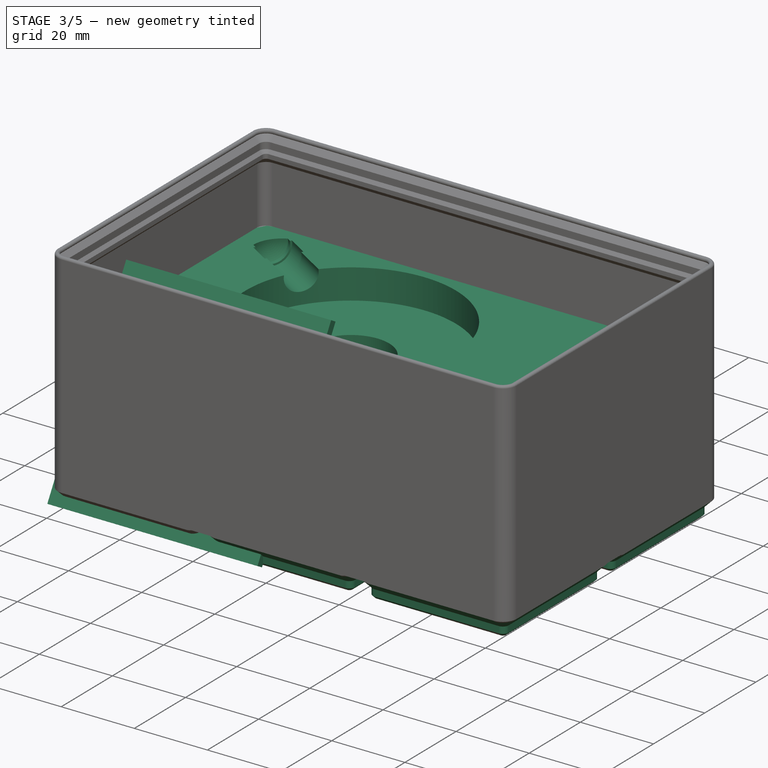
[diagram: stage 3 of 5 — iso view after this stage's code; geometry added in this stage tinted green]
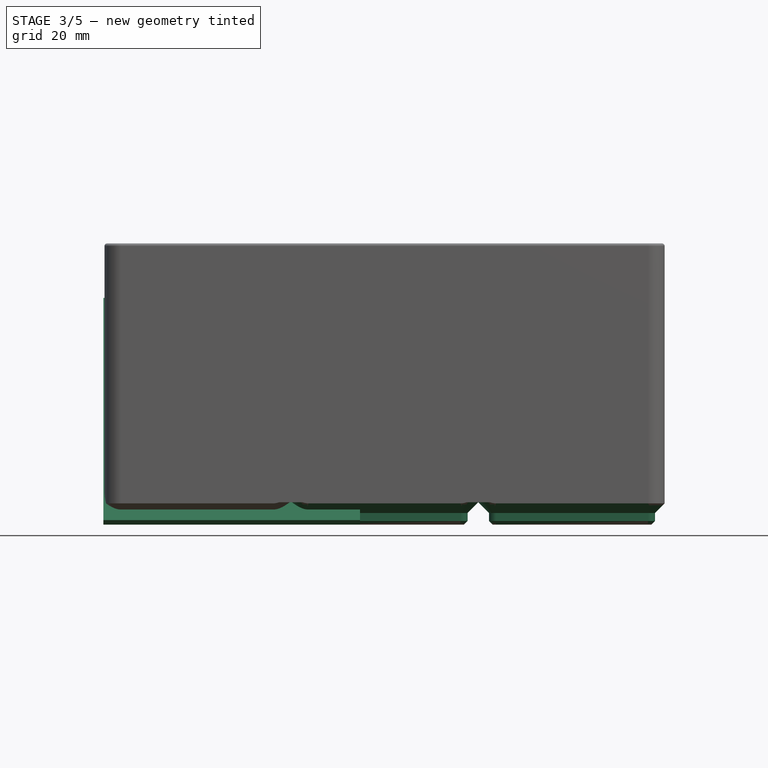
[diagram: stage 3 of 5 — front view after this stage's code; geometry added in this stage tinted green]
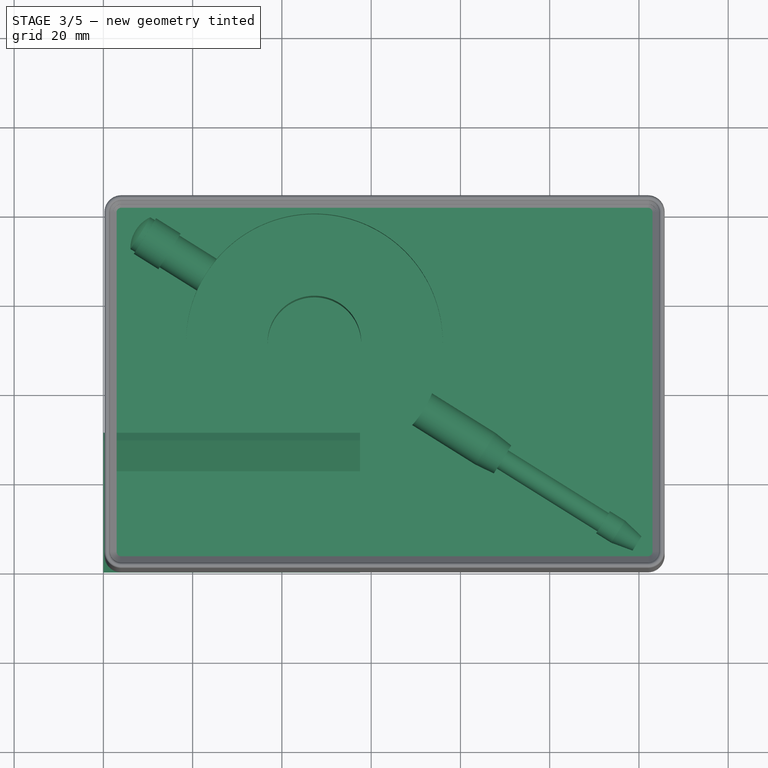
[diagram: stage 3 of 5 — top view after this stage's code; geometry added in this stage tinted green]
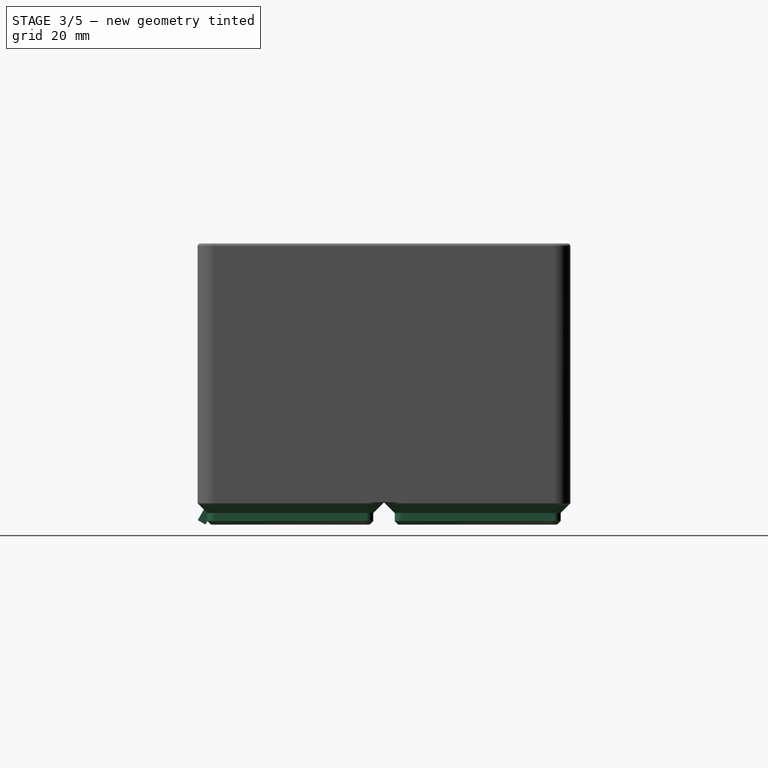
[diagram: stage 3 of 5 — right view after this stage's code; geometry added in this stage tinted green]
FEATURE [PartDesign::LinearPattern] LinearPattern002  label="LinearPattern_storage_grid_x"
  Direction = -> X_Axis001
  Length = 84
  Occurrences = 3
  Placement = pos=(0,0,0) rot=(0.57735,0.57735,0.57735;2.0944rad)
  Refine = true
  expr: Length = max(dd.ddTotal_width - dd.ddGrid_size; 1e-06mm)
  expr: Occurrences = max(dd.ddColumns; 2)
FEATURE [PartDesign::LinearPattern] LinearPattern003  label="LinearPattern_storage_grid_y"
  Direction = -> Y_Axis001
  Length = 42
  Occurrences = 2
  Placement = pos=(0,0,0) rot=(0.57735,0.57735,0.57735;2.0944rad)
  Refine = true
  expr: Length = max(dd.ddTotal_length - dd.ddGrid_size; dd.ddGrid_size)
  expr: Occurrences = dd.ddRows
FEATURE [PartDesign::MultiTransform] MultiTransform001  label="MultiTransform_storage_grid"
  BaseFeature = -> Hole001
  Originals = -> [SubtractiveLoft001,Hole,Hole001]
  Placement = pos=(0,0,0) rot=(0.57735,0.57735,0.57735;2.0944rad)
  Refine = true
  Transformations = -> [LinearPattern002,LinearPattern003]
FEATURE [PartDesign::Pad] Pad002
  BaseFeature = -> MultiTransform001
  Direction = (-4e-16,1.3e-15,1)
  Length = 33
  Length2 = 10
  Placement = pos=(0,0,0) rot=(0.57735,0.57735,0.57735;2.0944rad)
  Profile = -> MultiTransform001 [Face273]
  Type = 0
FEATURE [PartDesign::Body] Body003  label="Dial Gauge"
  Group = -> [Sketch015,Revolution,Sketch016,Pad003,Sketch017,Pad004]
  Origin = -> Origin003
  Placement = pos=(7.21,76.34,38.5) rot=(0,0,-1;3.7001rad)
  Tip = -> Pad004
FEATURE [Sketcher::SketchObject] Sketch018
  FullyConstrained = true
  MapMode = 5
  Placement = pos=(0,0,0) rot=(0.57735,0.57735,0.57735;2.0944rad)
  Support = -> [YZ_Plane004]
  sketch-geometry (4):
    g0: LineSegment StartX=2 StartY=0 StartZ=0 EndX=30.75 EndY=49.7965 EndZ=0
    g1: LineSegment StartX=30.75 StartY=49.7965 StartZ=0 EndX=29.0179 EndY=50.7965 EndZ=0
    g2: LineSegment StartX=29.0179 StartY=50.7965 StartZ=0 EndX=0.267949 EndY=1 EndZ=0
    g3: LineSegment StartX=0.267949 StartY=1 StartZ=0 EndX=2 EndY=0 EndZ=0
  constraints (12):
    c: PointOnObject(g0,g-1)
    c: Distance(g0) = 57.5
    c: DistanceX(g-1,g0) = 2
    c: Angle(g0,g-1) = 2.0944
    c: Coincident(g0,g1)
    c: Coincident(g1,g2)
    c: Coincident(g2,g3)
    c: Coincident(g3,g0)
    c: Equal(g0,g2)
    c: Equal(g3,g1)
    c: Distance(g1) = 2
    c: Angle(g1,g0) = 1.5708
FEATURE [PartDesign::Pad] Pad006
  Direction = (1,-2e-16,3e-16)
  Length = 57.5
  Length2 = 10
  Placement = pos=(0,0,0) rot=(0.57735,0.57735,0.57735;2.0944rad)
  Profile = -> Sketch018
  ReferenceAxis = -> Sketch018 [N_Axis]
  Type = 0
FEATURE [PartDesign::Body] Body004  label="Plate"
  Group = -> [Sketch018,Pad006,Sketch019,Pad005]
  Origin = -> Origin004
  Placement = pos=(89,80.5,8) rot=(0,0,1;4.71239rad)
  Tip = -> Pad005
FEATURE [Part::Cut] Cut
  Base = -> Body001
  Tool = -> Body003
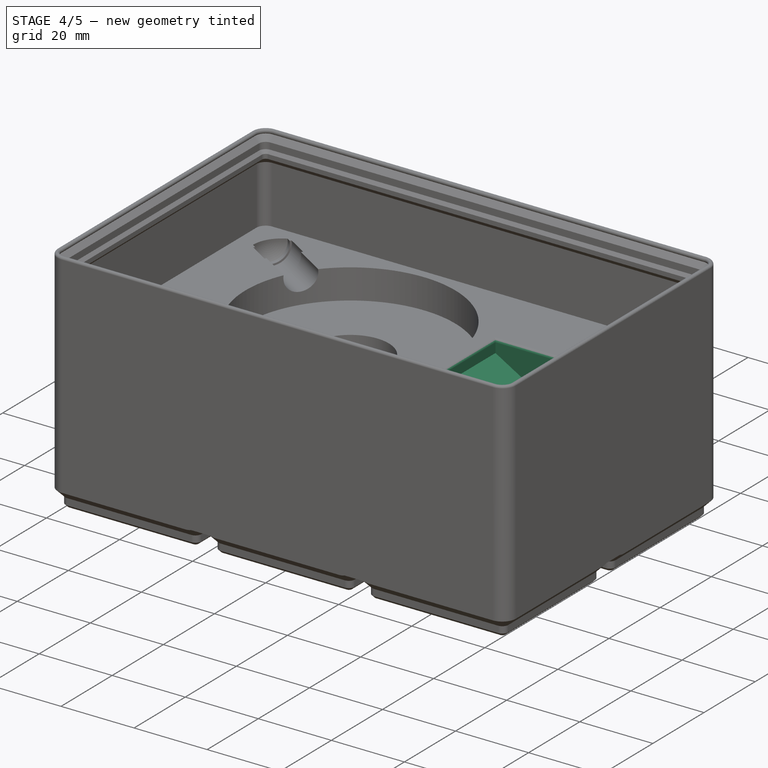
[diagram: stage 4 of 5 — iso view after this stage's code; geometry added in this stage tinted green]
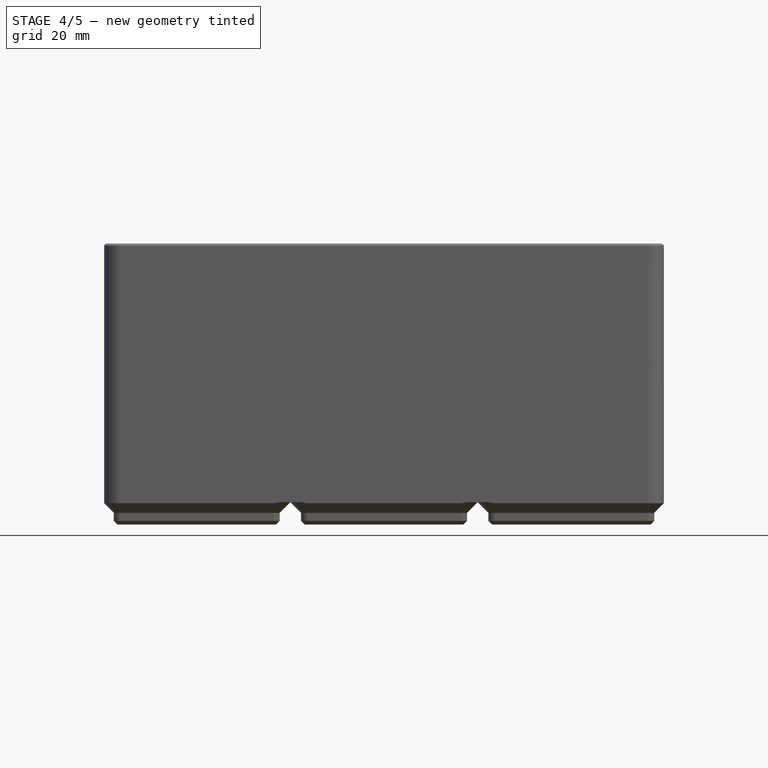
[diagram: stage 4 of 5 — front view after this stage's code; geometry added in this stage tinted green]
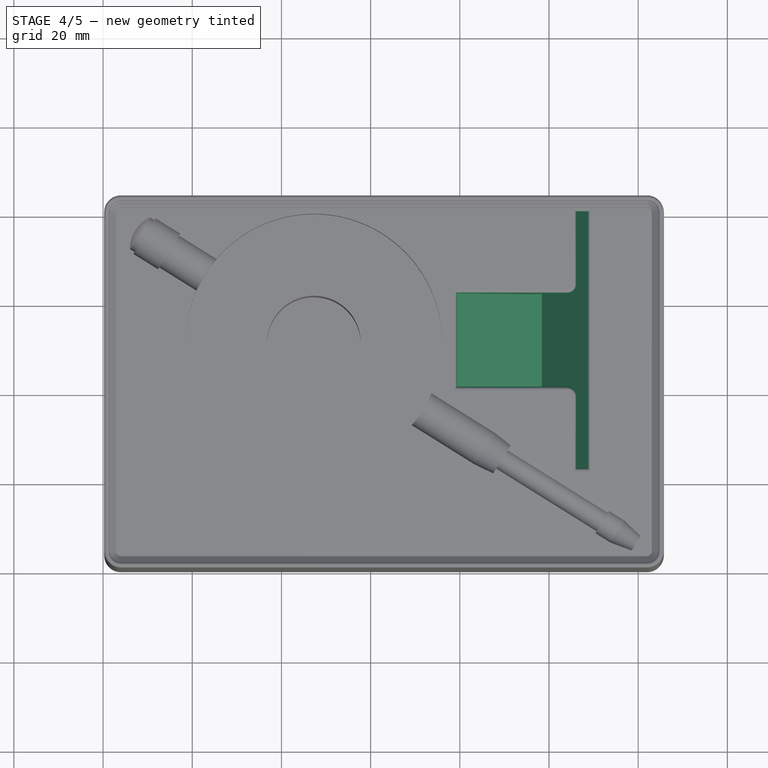
[diagram: stage 4 of 5 — top view after this stage's code; geometry added in this stage tinted green]
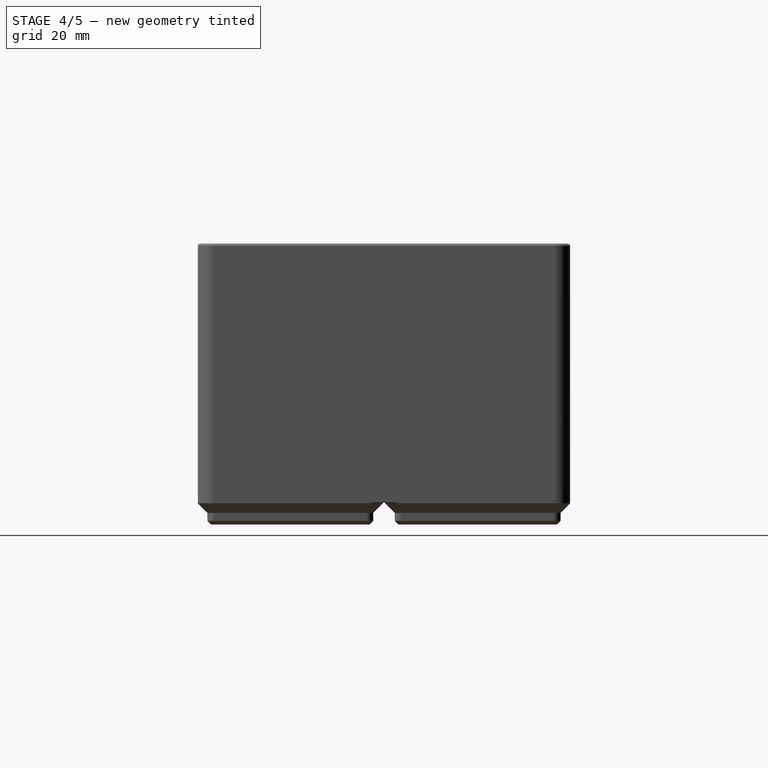
[diagram: stage 4 of 5 — right view after this stage's code; geometry added in this stage tinted green]
FEATURE [Sketcher::SketchObject] Sketch019
  AttachmentOffset = pos=(0,0,18.25) rot=(0,0,1;0rad)
  FullyConstrained = true
  MapMode = 5
  Placement = pos=(18.25,-4.1e-15,4.1e-15) rot=(0.57735,0.57735,0.57735;2.0944rad)
  Support = -> [YZ_Plane004]
  expr: .AttachmentOffset.Base.z = 57.5 / 2 - 21 / 2
  sketch-geometry (7):
    g0: LineSegment StartX=2 StartY=0 StartZ=0 EndX=30.75 EndY=49.7965 EndZ=0
    g1: LineSegment StartX=30.75 StartY=49.7965 StartZ=0 EndX=29.0179 EndY=50.7965 EndZ=0
    g2: LineSegment StartX=0.267949 StartY=1 StartZ=0 EndX=2 EndY=0 EndZ=0
    g3: LineSegment StartX=0.267949 StartY=1 StartZ=0 EndX=9.39295 EndY=16.805 EndZ=0
    g4: LineSegment StartX=9.39295 StartY=16.805 StartZ=0 EndX=-9.66205 EndY=27.8064 EndZ=0
    g5: LineSegment StartX=29.0179 StartY=50.7965 StartZ=0 EndX=-9.66205 EndY=50.7965 EndZ=0
    g6: LineSegment StartX=-9.66205 StartY=50.7965 StartZ=0 EndX=-9.66205 EndY=27.8064 EndZ=0
  constraints (21):
    c: PointOnObject(g0,g-1)
    c: Coincident(g0,g1)
    c: Coincident(g2,g0)
    c: Equal(g2,g1)
    c: Angle(g1,g0) = 1.5708
    c: Distance(g0) = 57.5
    c: Distance(g2) = 2
    c: Angle(g0,g-1) = 2.0944
    c: Coincident(g2,g3)
    c: Coincident(g3,g4)
    c: Angle(g2,g3) = 1.5708
    c: Angle(g4,g3) = 1.5708
    c: Coincident(g1,g5)
    c: Horizontal(g5)
    c: Coincident(g5,g6)
    c: Coincident(g6,g4)
    c: Vertical(g6)
    c: Angle(g4,g6) = 2.0944
    c: DistanceX(g5,g5) = 38.68
    c: DistanceX(g-1,g0) = 2
    c: Distance(g3) = 18.25
FEATURE [PartDesign::Pad] Pad005
  BaseFeature = -> Pad006
  Direction = (1,-2e-16,3e-16)
  Length = 21
  Length2 = 10
  Placement = pos=(0,0,0) rot=(0.57735,0.57735,0.57735;2.0944rad)
  Profile = -> Sketch019
  ReferenceAxis = -> Sketch019 [N_Axis]
  Type = 0
FEATURE [Part::Cut] Cut001
  Base = -> Cut
  Tool = -> Body004
FEATURE [PartDesign::FeatureBase] BaseFeature
  BaseFeature = -> Cut001
FEATURE [PartDesign::Fillet] Fillet
  Base = -> BaseFeature [Edge702,Edge707]
  BaseFeature = -> BaseFeature
  Radius = 2
  SupportTransform = false
  UseAllEdges = false
FEATURE [PartDesign::Fillet] Fillet001
  Base = -> Fillet [Edge5,Edge7,Edge9,Edge3,Edge1,Edge11,Edge12,Edge2,Edge4,Edge6,Edge8,Edge10]
  BaseFeature = -> Fillet
  Radius = 0.8
  SupportTransform = false
  UseAllEdges = false
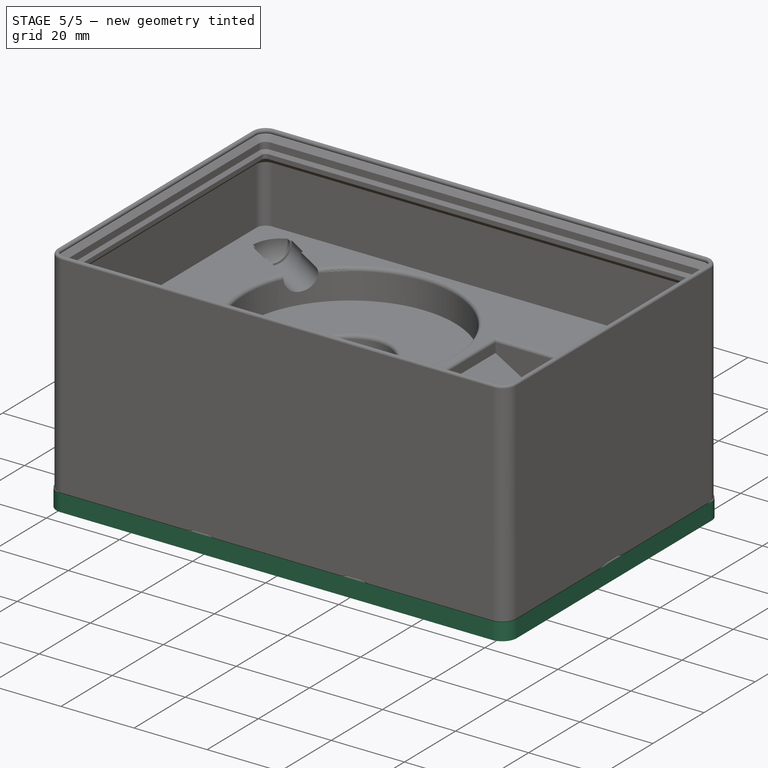
[diagram: stage 5 of 5 — iso view after this stage's code; geometry added in this stage tinted green]
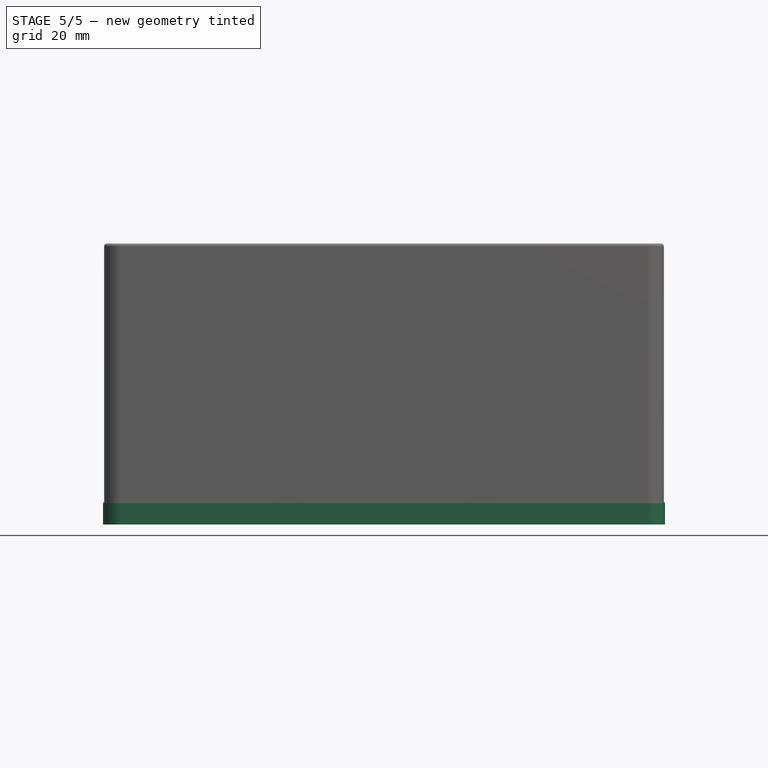
[diagram: stage 5 of 5 — front view after this stage's code; geometry added in this stage tinted green]
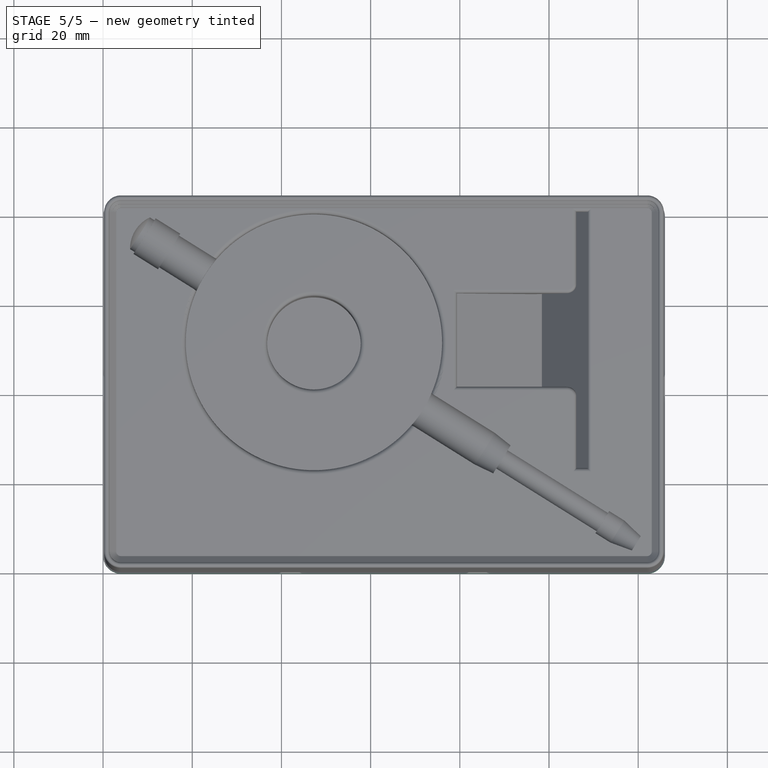
[diagram: stage 5 of 5 — top view after this stage's code; geometry added in this stage tinted green]
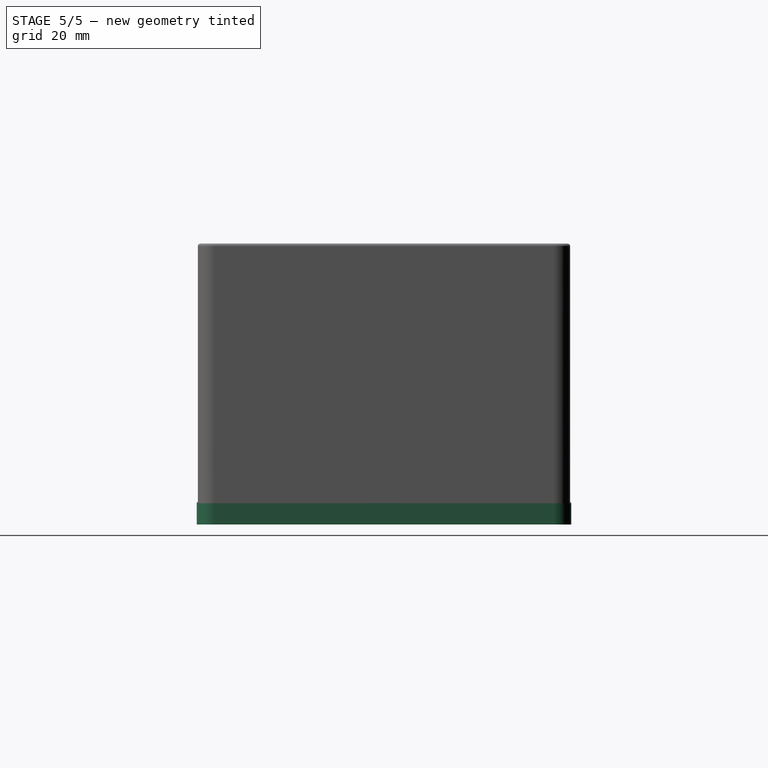
[diagram: stage 5 of 5 — right view after this stage's code; geometry added in this stage tinted green]
FEATURE [App::FeaturePython] dd  # WARN: FeaturePython — macro-defined, semantics opaque (R4)
  DynamicData = Created with DynamicData (v2.46) workbench. | This is a simple container object built | for holding custom properties.
  ddBase_screw_diameter = 3
  ddBase_screw_hole_depth = 1e-06
  ddBottom_chamfer = 0.8
  ddCell_center = 21
  ddClearance = 0.25
  ddColumns = 3
  ddCorner_fillet = 4
  ddFrame_height = 5
  ddFrame_width = 2.4
  ddGrid_size = 42
  ddHeight = 9
  ddMagnet_diameter = 6.5
  ddMagnet_inset = 8
  ddMagnet_thickness = 2.4
  ddRows = 2
  ddSet_screw_holes = false
  ddStorage_height = 63
  ddStorage_height_unit = 7
  ddTotal_length = 84
  ddTotal_width = 126
  ddWall_thickness = 1.2
  expr: ddBase_screw_hole_depth = max(ddSet_screw_holes * (ddFrame_height - ddMagnet_thickness); 1e-06mm)
  expr: ddCell_center = ddGrid_size / 2
  expr: ddStorage_height = max(ddStorage_height_unit * ddHeight; ddFrame_height + ddWall_thickness)
  expr: ddStorage_height_unit = ddGrid_size / 6
  expr: ddTotal_length = ddRows * ddGrid_size
  expr: ddTotal_width = ddColumns * ddGrid_size
FEATURE [Sketcher::SketchObject] Sketch  label="Sketch_frame_stock"
  FullyConstrained = true
  MapMode = 5
  Support = -> [XY_Plane]
  expr: Constraints[21] = dd.ddTotal_width
  expr: Constraints[22] = dd.ddTotal_length
  expr: Constraints[23] = dd.ddCorner_fillet
  sketch-geometry (10):
    g0: ArcOfCircle CenterX=4 CenterY=4 CenterZ=0 NormalX=0 NormalY=0 NormalZ=1 AngleXU=0 Radius=4 StartAngle=3.14159 EndAngle=4.71239
    g1: LineSegment StartX=0 StartY=4 StartZ=0 EndX=0 EndY=80 EndZ=0
    g2: ArcOfCircle CenterX=4 CenterY=80 CenterZ=0 NormalX=0 NormalY=0 NormalZ=1 AngleXU=0 Radius=4 StartAngle=1.5708 EndAngle=3.14159
    g3: LineSegment StartX=4 StartY=84 StartZ=0 EndX=122 EndY=84 EndZ=0
    g4: ArcOfCircle CenterX=122 CenterY=80 CenterZ=0 NormalX=0 NormalY=0 NormalZ=1 AngleXU=0 Radius=4 StartAngle=-3.6e-15 EndAngle=1.5708
    g5: LineSegment StartX=126 StartY=80 StartZ=0 EndX=126 EndY=4 EndZ=0
    g6: ArcOfCircle CenterX=122 CenterY=4 CenterZ=0 NormalX=0 NormalY=0 NormalZ=1 AngleXU=0 Radius=4 StartAngle=4.71239 EndAngle=6.28319
    g7: LineSegment StartX=122 StartY=0 StartZ=0 EndX=4 EndY=0 EndZ=0
    g8: GeomPoint X=0 Y=0 Z=0
    g9: GeomPoint X=126 Y=84 Z=0
  constraints (24):
    c: Tangent(g0,g1) = 1.5708
    c: Tangent(g1,g2) = 1.5708
    c: Tangent(g2,g3) = 1.5708
    c: Tangent(g3,g4) = 1.5708
    c: Tangent(g4,g5) = 1.5708
    c: Tangent(g5,g6) = 1.5708
    c: Tangent(g6,g7) = 1.5708
    c: Tangent(g7,g0) = 1.5708
    c: Horizontal(g3)
    c: Horizontal(g7)
    c: Vertical(g1)
    c: Vertical(g5)
    c: Equal(g0,g2)
    c: Equal(g2,g4)
    c: Equal(g4,g6)
    c: PointOnObject(g8,g1)
    c: PointOnObject(g8,g7)
    c: PointOnObject(g9,g3)
    c: PointOnObject(g9,g5)
    c: PointOnObject(g8,g-1)
    c: PointOnObject(g0,g-2)
    c: DistanceX(g0,g5) = 126
    c: DistanceY(g0,g2) = 84
    c: Radius(g0) = 4
FEATURE [PartDesign::Pad] Pad  label="Pad_frame_stock"
  Direction = (0,0,1)
  Length = 5
  Length2 = 10
  Profile = -> Sketch
  ReferenceAxis = -> Sketch [N_Axis]
  Refine = true
  Type = 0
  expr: Length = dd.ddFrame_height
FEATURE [Sketcher::SketchObject] Sketch001  label="Sketch_frame_cell_cutout_top"
  AttachmentOffset = pos=(0,0,5) rot=(0,0,1;0rad)
  FullyConstrained = true
  MapMode = 5
  Placement = pos=(0,0,5) rot=(0,0,1;0rad)
  Support = -> [XY_Plane]
  expr: .AttachmentOffset.Base.z = dd.ddFrame_height
  expr: Constraints[19] = dd.ddCorner_fillet + dd.ddClearance
  expr: Constraints[20] = dd.ddCorner_fillet
  expr: Constraints[21] = dd.ddCorner_fillet
  expr: Constraints[22] = dd.ddGrid_size - 2 * dd.ddCorner_fillet
  expr: Constraints[23] = dd.ddGrid_size - 2 * dd.ddCorner_fillet
  sketch-geometry (10):
    g0: ArcOfCircle CenterX=4 CenterY=4 CenterZ=0 NormalX=0 NormalY=0 NormalZ=1 AngleXU=0 Radius=4.25 StartAngle=3.14159 EndAngle=4.71239
    g1: LineSegment StartX=-0.25 StartY=4 StartZ=0 EndX=-0.25 EndY=38 EndZ=0
    g2: ArcOfCircle CenterX=4 CenterY=38 CenterZ=0 NormalX=0 NormalY=0 NormalZ=1 AngleXU=0 Radius=4.25 StartAngle=1.5708 EndAngle=3.14159
    g3: LineSegment StartX=4 StartY=42.25 StartZ=0 EndX=38 EndY=42.25 EndZ=0
    g4: ArcOfCircle CenterX=38 CenterY=38 CenterZ=0 NormalX=0 NormalY=0 NormalZ=1 AngleXU=0 Radius=4.25 StartAngle=0 EndAngle=1.5708
    g5: LineSegment StartX=42.25 StartY=38 StartZ=0 EndX=42.25 EndY=4 EndZ=0
    g6: ArcOfCircle CenterX=38 CenterY=4 CenterZ=0 NormalX=0 NormalY=0 NormalZ=1 AngleXU=0 Radius=4.25 StartAngle=4.71239 EndAngle=6.28319
    g7: LineSegment StartX=38 StartY=-0.25 StartZ=0 EndX=4 EndY=-0.25 EndZ=0
    g8: GeomPoint X=-0.25 Y=-0.25 Z=0
    g9: GeomPoint X=42.25 Y=42.25 Z=0
  constraints (24):
    c: Tangent(g0,g1) = 1.5708
    c: Tangent(g1,g2) = 1.5708
    c: Tangent(g2,g3) = 1.5708
    c: Tangent(g3,g4) = 1.5708
    c: Tangent(g4,g5) = 1.5708
    c: Tangent(g5,g6) = 1.5708
    c: Tangent(g6,g7) = 1.5708
    c: Tangent(g7,g0) = 1.5708
    c: Horizontal(g3)
    c: Horizontal(g7)
    c: Vertical(g1)
    c: Vertical(g5)
    c: Equal(g0,g2)
    c: Equal(g2,g4)
    c: Equal(g4,g6)
    c: PointOnObject(g8,g1)
    c: PointOnObject(g8,g7)
    c: PointOnObject(g9,g3)
    c: PointOnObject(g9,g5)
    c: Radius(g0) = 4.25
    c: DistanceX(g-1,g0) = 4
    c: DistanceY(g-1,g0) = 4
    c: DistanceX(g2,g4) = 34
    c: DistanceY(g6,g4) = 34
FEATURE [Sketcher::SketchObject] Sketch002  label="Sketch_frame_cell_cutout_top_chamfer"
  AttachmentOffset = pos=(0,0,2.6) rot=(0,0,1;0rad)
  FullyConstrained = true
  MapMode = 5
  Placement = pos=(0,0,2.6) rot=(0,0,1;0rad)
  Support = -> [XY_Plane]
  expr: .AttachmentOffset.Base.z = dd.ddFrame_height - dd.ddFrame_width
  expr: Constraints[19] = Sketch001.Constraints[19] - dd.ddFrame_width
  expr: Constraints[20] = Sketch001.Constraints[20]
  expr: Constraints[21] = Sketch001.Constraints[21]
  expr: Constraints[22] = Sketch001.Constraints[22]
  expr: Constraints[23] = Sketch001.Constraints[23]
  sketch-geometry (10):
    g0: ArcOfCircle CenterX=4 CenterY=4 CenterZ=0 NormalX=0 NormalY=0 NormalZ=1 AngleXU=0 Radius=1.85 StartAngle=3.14159 EndAngle=4.71239
    g1: LineSegment StartX=2.15 StartY=4 StartZ=0 EndX=2.15 EndY=38 EndZ=0
    g2: ArcOfCircle CenterX=4 CenterY=38 CenterZ=0 NormalX=0 NormalY=0 NormalZ=1 AngleXU=0 Radius=1.85 StartAngle=1.5708 EndAngle=3.14159
    g3: LineSegment StartX=4 StartY=39.85 StartZ=0 EndX=38 EndY=39.85 EndZ=0
    g4: ArcOfCircle CenterX=38 CenterY=38 CenterZ=0 NormalX=0 NormalY=0 NormalZ=1 AngleXU=0 Radius=1.85 StartAngle=9.26e-14 EndAngle=1.5708
    g5: LineSegment StartX=39.85 StartY=38 StartZ=0 EndX=39.85 EndY=4 EndZ=0
    g6: ArcOfCircle CenterX=38 CenterY=4 CenterZ=0 NormalX=0 NormalY=0 NormalZ=1 AngleXU=0 Radius=1.85 StartAngle=4.71239 EndAngle=6.28319
    g7: LineSegment StartX=38 StartY=2.15 StartZ=0 EndX=4 EndY=2.15 EndZ=0
    g8: GeomPoint X=2.15 Y=2.15 Z=0
    g9: GeomPoint X=39.85 Y=39.85 Z=0
  constraints (24):
    c: Tangent(g0,g1) = 1.5708
    c: Tangent(g1,g2) = 1.5708
    c: Tangent(g2,g3) = 1.5708
    c: Tangent(g3,g4) = 1.5708
    c: Tangent(g4,g5) = 1.5708
    c: Tangent(g5,g6) = 1.5708
    c: Tangent(g6,g7) = 1.5708
    c: Tangent(g7,g0) = 1.5708
    c: Horizontal(g3)
    c: Horizontal(g7)
    c: Vertical(g1)
    c: Vertical(g5)
    c: Equal(g0,g2)
    c: Equal(g2,g4)
    c: Equal(g4,g6)
    c: PointOnObject(g8,g1)
    c: PointOnObject(g8,g7)
    c: PointOnObject(g9,g3)
    c: PointOnObject(g9,g5)
    c: Radius(g0) = 1.85
    c: DistanceX(g-1,g0) = 4
    c: DistanceY(g-1,g0) = 4
    c: DistanceX(g2,g4) = 34
    c: DistanceY(g6,g4) = 34
FEATURE [Sketcher::SketchObject] Sketch003  label="Sketch_frame_cell_cutout_bottom_chamfer"
  AttachmentOffset = pos=(0,0,0.8) rot=(0,0,1;0rad)
  FullyConstrained = true
  MapMode = 5
  Placement = pos=(0,0,0.8) rot=(0,0,1;0rad)
  Support = -> [XY_Plane]
  expr: .AttachmentOffset.Base.z = dd.ddBottom_chamfer
  expr: Constraints[19] = Sketch002.Constraints[19]
  expr: Constraints[20] = Sketch002.Constraints[20]
  expr: Constraints[21] = Sketch002.Constraints[21]
  expr: Constraints[22] = Sketch002.Constraints[22]
  expr: Constraints[23] = Sketch002.Constraints[23]
  sketch-geometry (10):
    g0: ArcOfCircle CenterX=4 CenterY=4 CenterZ=0 NormalX=0 NormalY=0 NormalZ=1 AngleXU=0 Radius=1.85 StartAngle=3.14159 EndAngle=4.71239
    g1: LineSegment StartX=2.15 StartY=4 StartZ=0 EndX=2.15 EndY=38 EndZ=0
    g2: ArcOfCircle CenterX=4 CenterY=38 CenterZ=0 NormalX=0 NormalY=0 NormalZ=1 AngleXU=0 Radius=1.85 StartAngle=1.5708 EndAngle=3.14159
    g3: LineSegment StartX=4 StartY=39.85 StartZ=0 EndX=38 EndY=39.85 EndZ=0
    g4: ArcOfCircle CenterX=38 CenterY=38 CenterZ=0 NormalX=0 NormalY=0 NormalZ=1 AngleXU=0 Radius=1.85 StartAngle=9.26e-14 EndAngle=1.5708
    g5: LineSegment StartX=39.85 StartY=38 StartZ=0 EndX=39.85 EndY=4 EndZ=0
    g6: ArcOfCircle CenterX=38 CenterY=4 CenterZ=0 NormalX=0 NormalY=0 NormalZ=1 AngleXU=0 Radius=1.85 StartAngle=4.71239 EndAngle=6.28319
    g7: LineSegment StartX=38 StartY=2.15 StartZ=0 EndX=4 EndY=2.15 EndZ=0
    g8: GeomPoint X=2.15 Y=2.15 Z=0
    g9: GeomPoint X=39.85 Y=39.85 Z=0
  constraints (24):
    c: Tangent(g0,g1) = 1.5708
    c: Tangent(g1,g2) = 1.5708
    c: Tangent(g2,g3) = 1.5708
    c: Tangent(g3,g4) = 1.5708
    c: Tangent(g4,g5) = 1.5708
    c: Tangent(g5,g6) = 1.5708
    c: Tangent(g6,g7) = 1.5708
    c: Tangent(g7,g0) = 1.5708
    c: Horizontal(g3)
    c: Horizontal(g7)
    c: Vertical(g1)
    c: Vertical(g5)
    c: Equal(g0,g2)
    c: Equal(g2,g4)
    c: Equal(g4,g6)
    c: PointOnObject(g8,g1)
    c: PointOnObject(g8,g7)
    c: PointOnObject(g9,g3)
    c: PointOnObject(g9,g5)
    c: Radius(g0) = 1.85
    c: DistanceX(g-1,g0) = 4
    c: DistanceY(g-1,g0) = 4
    c: DistanceX(g2,g4) = 34
    c: DistanceY(g6,g4) = 34
FEATURE [Sketcher::SketchObject] Sketch004  label="Sketch_frame_cell_cutout_bottom"
  FullyConstrained = true
  MapMode = 5
  Support = -> [XY_Plane]
  expr: Constraints[19] = Sketch003.Constraints[19] - dd.ddBottom_chamfer
  expr: Constraints[20] = Sketch003.Constraints[20]
  expr: Constraints[21] = Sketch003.Constraints[21]
  expr: Constraints[22] = Sketch003.Constraints[22]
  expr: Constraints[23] = Sketch003.Constraints[23]
  sketch-geometry (10):
    g0: ArcOfCircle CenterX=4 CenterY=4 CenterZ=0 NormalX=0 NormalY=0 NormalZ=1 AngleXU=0 Radius=1.05 StartAngle=3.14159 EndAngle=4.71239
    g1: LineSegment StartX=2.95 StartY=4 StartZ=0 EndX=2.95 EndY=38 EndZ=0
    g2: ArcOfCircle CenterX=4 CenterY=38 CenterZ=0 NormalX=0 NormalY=0 NormalZ=1 AngleXU=0 Radius=1.05 StartAngle=1.5708 EndAngle=3.14159
    g3: LineSegment StartX=4 StartY=39.05 StartZ=0 EndX=38 EndY=39.05 EndZ=0
    g4: ArcOfCircle CenterX=38 CenterY=38 CenterZ=0 NormalX=0 NormalY=0 NormalZ=1 AngleXU=0 Radius=1.05 StartAngle=2.2e-15 EndAngle=1.5708
    g5: LineSegment StartX=39.05 StartY=38 StartZ=0 EndX=39.05 EndY=4 EndZ=0
    g6: ArcOfCircle CenterX=38 CenterY=4 CenterZ=0 NormalX=0 NormalY=0 NormalZ=1 AngleXU=0 Radius=1.05 StartAngle=4.71239 EndAngle=6.28319
    g7: LineSegment StartX=38 StartY=2.95 StartZ=0 EndX=4 EndY=2.95 EndZ=0
    g8: GeomPoint X=2.95 Y=2.95 Z=0
    g9: GeomPoint X=39.05 Y=39.05 Z=0
  constraints (24):
    c: Tangent(g0,g1) = 1.5708
    c: Tangent(g1,g2) = 1.5708
    c: Tangent(g2,g3) = 1.5708
    c: Tangent(g3,g4) = 1.5708
    c: Tangent(g4,g5) = 1.5708
    c: Tangent(g5,g6) = 1.5708
    c: Tangent(g6,g7) = 1.5708
    c: Tangent(g7,g0) = 1.5708
    c: Horizontal(g3)
    c: Horizontal(g7)
    c: Vertical(g1)
    c: Vertical(g5)
    c: Equal(g0,g2)
    c: Equal(g2,g4)
    c: Equal(g4,g6)
    c: PointOnObject(g8,g1)
    c: PointOnObject(g8,g7)
    c: PointOnObject(g9,g3)
    c: PointOnObject(g9,g5)
    c: Radius(g0) = 1.05
    c: DistanceX(g-1,g0) = 4
    c: DistanceY(g-1,g0) = 4
    c: DistanceX(g2,g4) = 34
    c: DistanceY(g6,g4) = 34
FEATURE [PartDesign::SubtractiveLoft] SubtractiveLoft  label="SubtractiveLoft_frame_cell_cutout"
  BaseFeature = -> Pad
  Closed = false
  Profile = -> Sketch001
  Refine = true
  Ruled = true
  Sections = -> [Sketch002,Sketch003,Sketch004]
FEATURE [PartDesign::LinearPattern] LinearPattern  label="LinearPattern_frame_grid_x"
  Direction = -> X_Axis
  Length = 84
  Occurrences = 3
  Refine = true
  expr: Length = max(dd.ddTotal_width - dd.ddGrid_size; 1e-06mm)
  expr: Occurrences = max(dd.ddColumns; 2)
FEATURE [PartDesign::LinearPattern] LinearPattern001  label="LinearPattern_frame_grid_y"
  Direction = -> Y_Axis
  Length = 42
  Occurrences = 2
  Refine = true
  expr: Length = max(dd.ddTotal_length - dd.ddGrid_size; dd.ddGrid_size)
  expr: Occurrences = dd.ddRows
FEATURE [PartDesign::MultiTransform] MultiTransform  label="MultiTransform_frame_grid"
  BaseFeature = -> SubtractiveLoft
  Originals = -> [SubtractiveLoft]
  Refine = true
  Transformations = -> [LinearPattern,LinearPattern001]
FEATURE [PartDesign::Fillet] Fillet002
  Base = -> Fillet001 [Edge32,Edge35,Edge157]
  BaseFeature = -> Fillet001
  Radius = 1
  SupportTransform = false
  UseAllEdges = false
FEATURE [PartDesign::Body] Body005
  BaseFeature = -> Cut001
  Group = -> [BaseFeature,Fillet,Fillet001,Fillet002]
  Origin = -> Origin005
  Tip = -> Fillet002
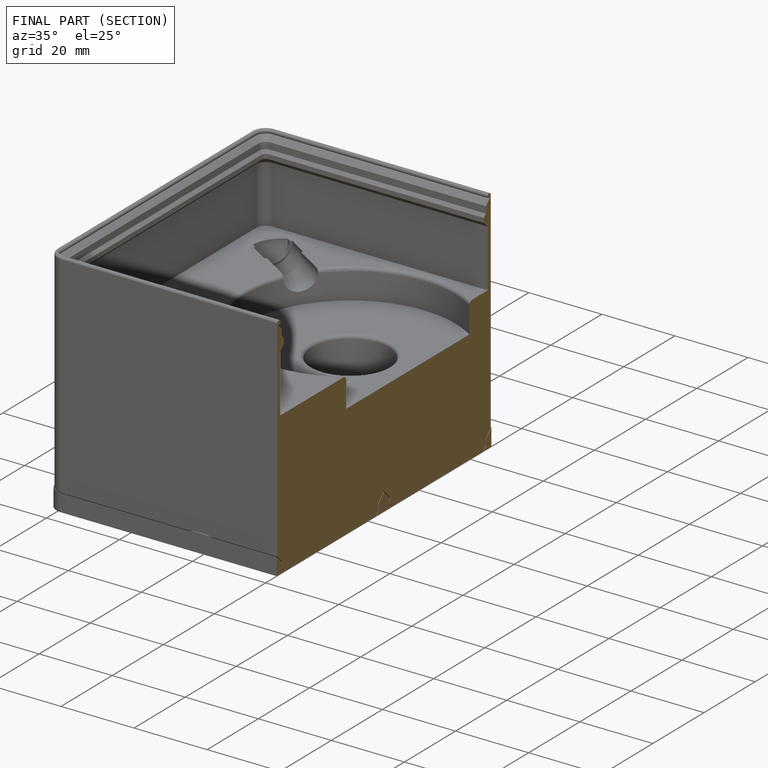
[diagram: finished part — half-section view (interior)]
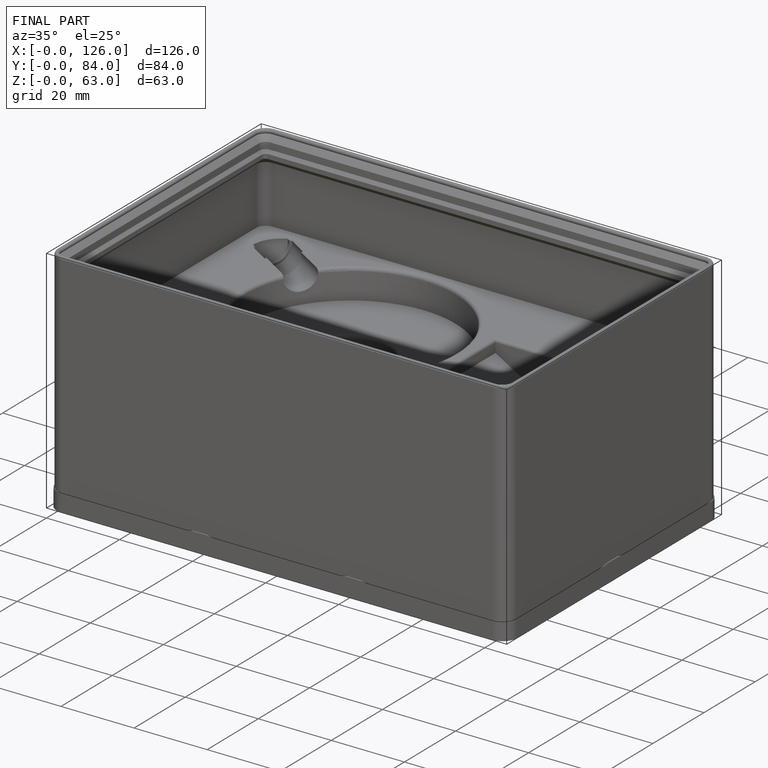
[diagram: finished part — iso view with bounding-box wireframe]
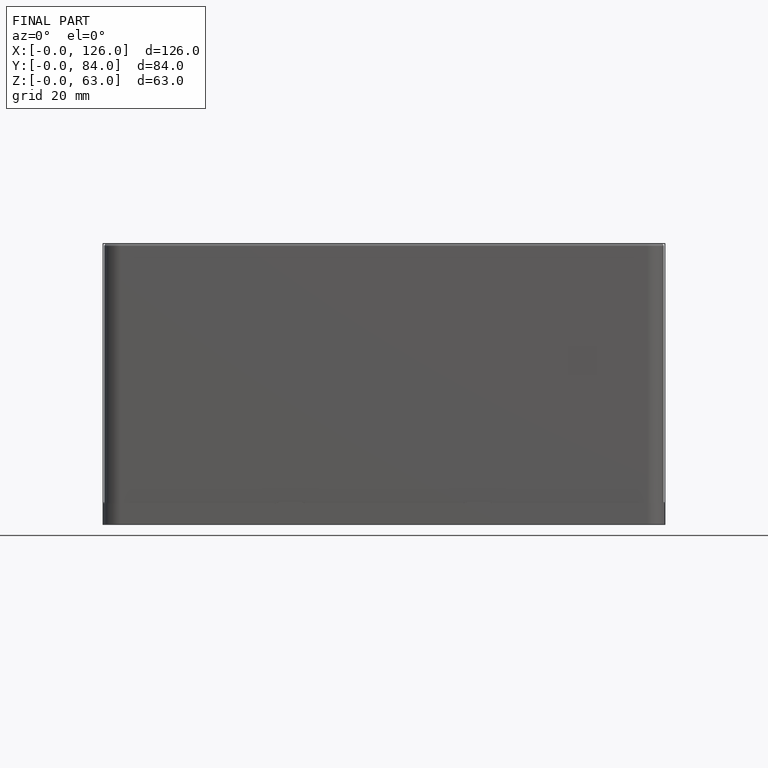
[diagram: finished part — front view with bounding-box wireframe]
